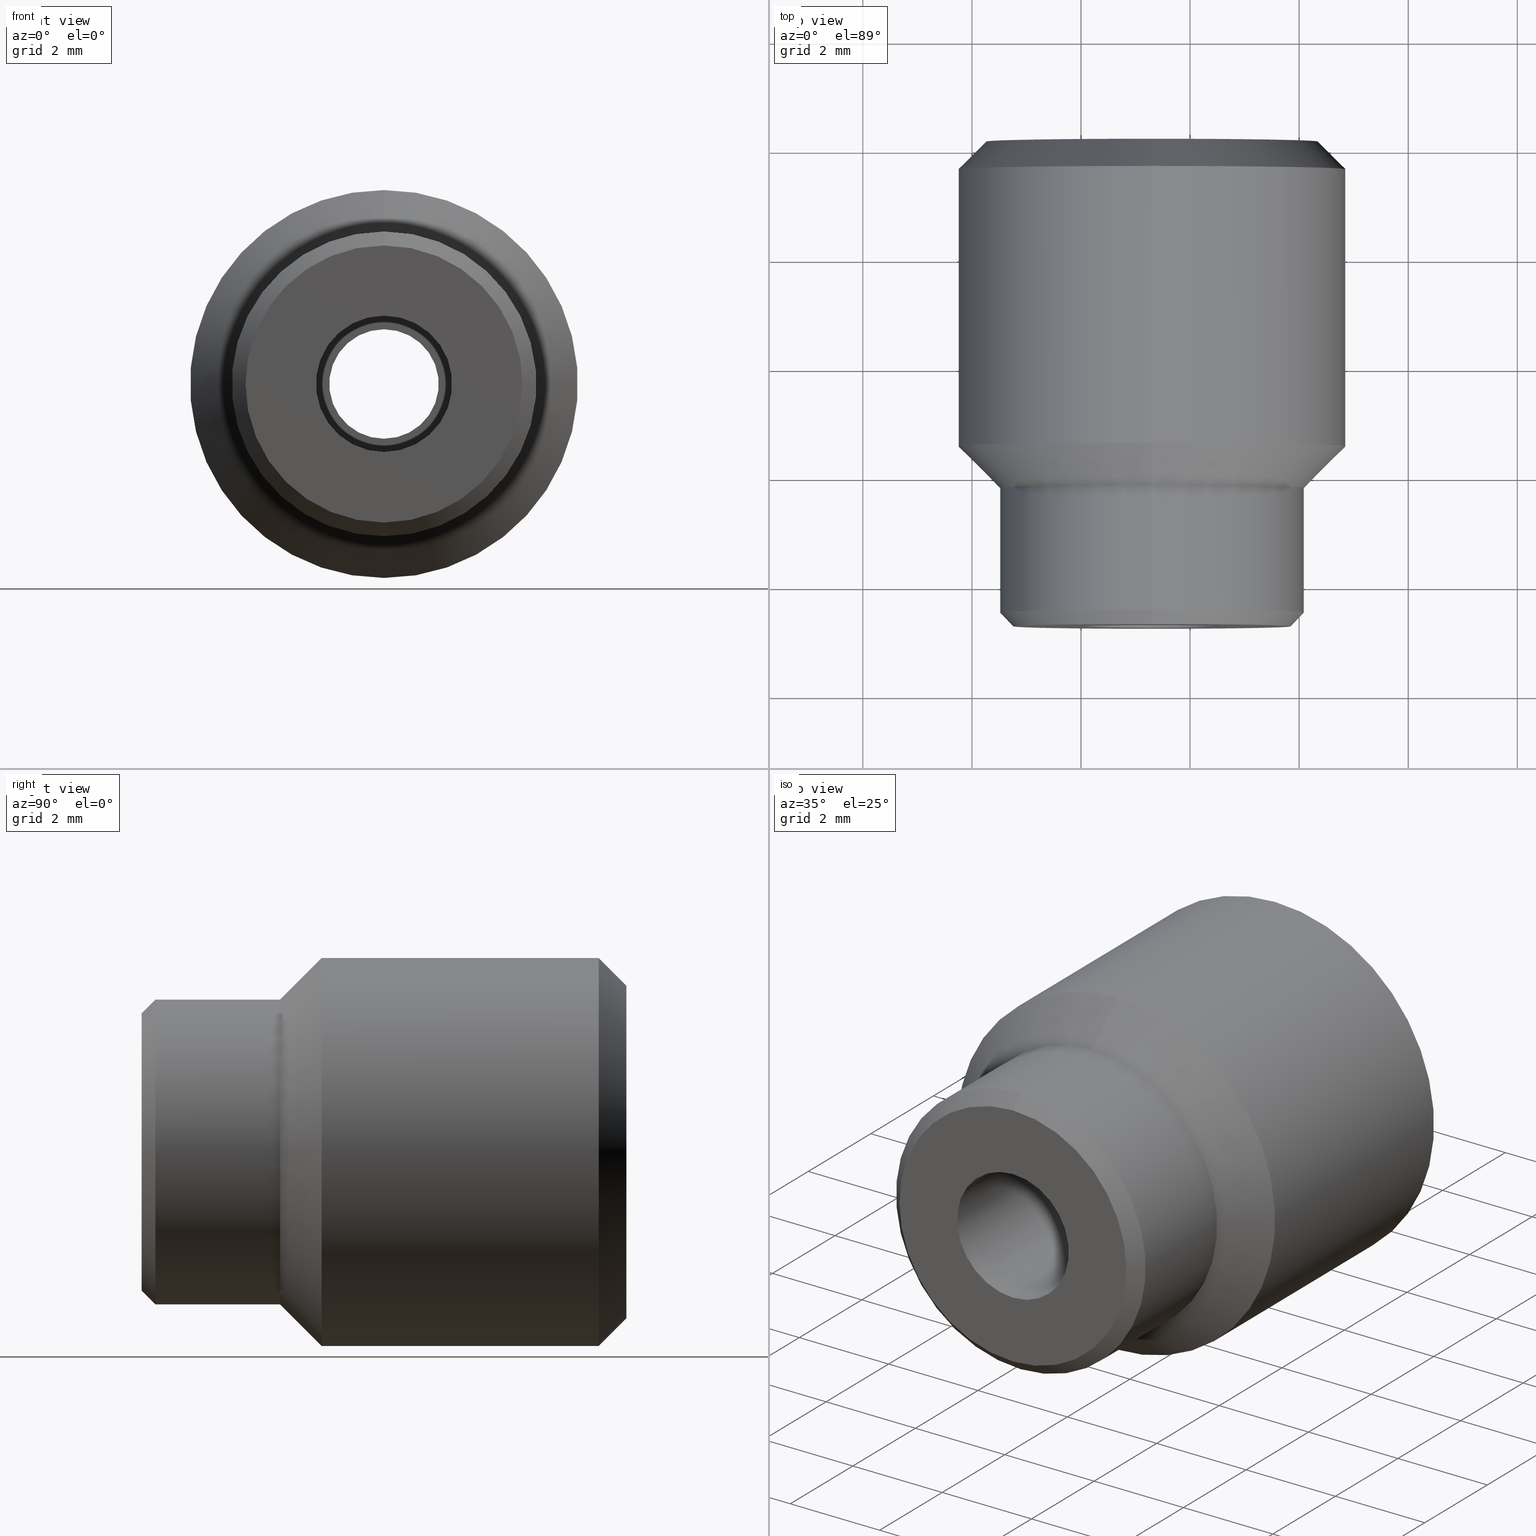
[diagram: canonical four-view strip — front | top / right | iso, engineering-drawing reading convention]
A machine part, canonical four-view strip (front | top / right | iso — engineering-drawing reading convention). The complete STEP part file that produces these views, byte-faithful:
ISO-10303-21;
HEADER;
FILE_DESCRIPTION (( 'STEP AP214' ),
    '1' );
FILE_NAME ('7658-E0W.STEP',
    '2011-08-18T18:49:43',
    ( 'Admin' ),
    ( 'Thorlabs, Inc.' ),
    'SwSTEP 2.0',
    'SolidWorks 2011',
    '' );
FILE_SCHEMA (( 'AUTOMOTIVE_DESIGN' ));
ENDSEC;

DATA;
#1 = SURFACE_SIDE_STYLE ('',( #803 ) ) ;
#2 = CARTESIAN_POINT ( 'NONE',  ( -0.8936271735354411900, 0.7798699709781208300, 0.2077039469346940700 ) ) ;
#3 = FILL_AREA_STYLE ('',( #15 ) ) ;
#4 = DIRECTION ( 'NONE',  ( -0.0000000000000000000, 1.000000000000000000, -0.0000000000000000000 ) ) ;
#5 = CARTESIAN_POINT ( 'NONE',  ( -0.8936271735354411900, 0.6358041395763715000, 0.1584913485094971700 ) ) ;
#6 = DIRECTION ( 'NONE',  ( -0.0000000000000000000, 1.000000000000000000, -0.0000000000000000000 ) ) ;
#7 = FILL_AREA_STYLE_COLOUR ( '', #541 ) ;
#8 =( LENGTH_UNIT ( ) NAMED_UNIT ( * ) SI_UNIT ( $, .METRE. ) );
#9 = DIRECTION ( 'NONE',  ( 0.0000000000000000000, 0.0000000000000000000, 1.000000000000000000 ) ) ;
#10 = FILL_AREA_STYLE_COLOUR ( '', #496 ) ;
#11 =( NAMED_UNIT ( * ) SI_UNIT ( $, .STERADIAN. ) SOLID_ANGLE_UNIT ( ) );
#12 =( LENGTH_UNIT ( ) NAMED_UNIT ( * ) SI_UNIT ( $, .METRE. ) );
#13 = DIRECTION ( 'NONE',  ( 8.659560562354948900E-017, 0.7071067811865462400, -0.7071067811865487900 ) ) ;
#14 = FILL_AREA_STYLE_COLOUR ( '', #497 ) ;
#15 = FILL_AREA_STYLE_COLOUR ( '', #514 ) ;
#16 = FILL_AREA_STYLE ('',( #125 ) ) ;
#17 = FILL_AREA_STYLE ('',( #14 ) ) ;
#18 = DIRECTION ( 'NONE',  ( 0.0000000000000000000, -0.0000000000000000000, -1.000000000000000000 ) ) ;
#19 = CARTESIAN_POINT ( 'NONE',  ( -0.8936271735354411900, 0.3858041395763716100, 0.1584913485094971700 ) ) ;
#20 = SURFACE_SIDE_STYLE ('',( #818 ) ) ;
#21 =( CONVERSION_BASED_UNIT ( 'INCH', #381 ) LENGTH_UNIT ( ) NAMED_UNIT ( #836 ) );
#22 = CARTESIAN_POINT ( 'NONE',  ( -0.8936271735354411900, 0.6158041395763715900, 0.2984913485094972100 ) ) ;
#23 = FILL_AREA_STYLE_COLOUR ( '', #516 ) ;
#24 = DIRECTION ( 'NONE',  ( 0.0000000000000000000, 0.0000000000000000000, 1.000000000000000000 ) ) ;
#25 = CARTESIAN_POINT ( 'NONE',  ( -0.8936271735354411900, 0.3858041395763716100, 0.04849134850949714200 ) ) ;
#26 = DIRECTION ( 'NONE',  ( -0.0000000000000000000, 1.000000000000000000, -0.0000000000000000000 ) ) ;
#27 = FILL_AREA_STYLE_COLOUR ( '', #462 ) ;
#28 =( LENGTH_UNIT ( ) NAMED_UNIT ( * ) SI_UNIT ( $, .METRE. ) );
#29 = CARTESIAN_POINT ( 'NONE',  ( -0.8936271735354411900, 0.4358041395763716000, 0.1584913485094971700 ) ) ;
#30 = SURFACE_STYLE_USAGE ( .BOTH. , #39 ) ;
#31 =( NAMED_UNIT ( * ) SI_UNIT ( $, .STERADIAN. ) SOLID_ANGLE_UNIT ( ) );
#32 =( CONVERSION_BASED_UNIT ( 'INCH', #412 ) LENGTH_UNIT ( ) NAMED_UNIT ( #840 ) );
#33 = FILL_AREA_STYLE_COLOUR ( '', #546 ) ;
#34 =( CONVERSION_BASED_UNIT ( 'INCH', #610 ) LENGTH_UNIT ( ) NAMED_UNIT ( #617 ) );
#35 =( LENGTH_UNIT ( ) NAMED_UNIT ( * ) SI_UNIT ( $, .METRE. ) );
#36 = CARTESIAN_POINT ( 'NONE',  ( -0.8936271735354411900, 0.4358041395763714900, 0.1584913485094971700 ) ) ;
#37 = CARTESIAN_POINT ( 'NONE',  ( -0.8936271735354411900, 0.2858041395763716300, 0.1584913485094971700 ) ) ;
#38 = DIRECTION ( 'NONE',  ( -0.0000000000000000000, 1.000000000000000000, -0.0000000000000000000 ) ) ;
#39 = SURFACE_SIDE_STYLE ('',( #702 ) ) ;
#40 = DIRECTION ( 'NONE',  ( 0.0000000000000000000, 0.0000000000000000000, 1.000000000000000000 ) ) ;
#41 = SURFACE_SIDE_STYLE ('',( #882 ) ) ;
#42 =( NAMED_UNIT ( * ) PLANE_ANGLE_UNIT ( ) SI_UNIT ( $, .RADIAN. ) );
#43 =( LENGTH_UNIT ( ) NAMED_UNIT ( * ) SI_UNIT ( $, .METRE. ) );
#44 = DIRECTION ( 'NONE',  ( 0.0000000000000000000, -1.000000000000000000, 0.0000000000000000000 ) ) ;
#45 = CARTESIAN_POINT ( 'NONE',  ( -0.8936271735354411900, 0.6158041395763715900, 0.2984913485094972100 ) ) ;
#46 = CARTESIAN_POINT ( 'NONE',  ( -0.8936271735354411900, 0.2858041395763716300, 0.2584913485094972300 ) ) ;
#47 = FILL_AREA_STYLE_COLOUR ( '', #491 ) ;
#48 = DIRECTION ( 'NONE',  ( 0.0000000000000000000, 0.0000000000000000000, 1.000000000000000000 ) ) ;
#49 = CARTESIAN_POINT ( 'NONE',  ( -0.8936271735354411900, 0.7798699709781208300, 0.1584913485094971700 ) ) ;
#50 = DIRECTION ( 'NONE',  ( 0.0000000000000000000, 0.7071067811865462400, 0.7071067811865487900 ) ) ;
#51 = DIRECTION ( 'NONE',  ( 0.0000000000000000000, 0.0000000000000000000, 1.000000000000000000 ) ) ;
#52 = FILL_AREA_STYLE ('',( #151 ) ) ;
#53 =( NAMED_UNIT ( * ) PLANE_ANGLE_UNIT ( ) SI_UNIT ( $, .RADIAN. ) );
#54 = DIRECTION ( 'NONE',  ( -0.0000000000000000000, 1.000000000000000000, -0.0000000000000000000 ) ) ;
#55 =( NAMED_UNIT ( * ) SI_UNIT ( $, .STERADIAN. ) SOLID_ANGLE_UNIT ( ) );
#56 = DIRECTION ( 'NONE',  ( -0.0000000000000000000, 1.000000000000000000, -0.0000000000000000000 ) ) ;
#57 = PLANE ( 'NONE',  #587 ) ;
#58 = DIRECTION ( 'NONE',  ( -0.0000000000000000000, 1.000000000000000000, -0.0000000000000000000 ) ) ;
#59 = CARTESIAN_POINT ( 'NONE',  ( -0.8936271735354411900, 0.6358041395763715000, 0.09899134850949717300 ) ) ;
#60 =( NAMED_UNIT ( * ) SI_UNIT ( $, .STERADIAN. ) SOLID_ANGLE_UNIT ( ) );
#61 = SURFACE_STYLE_USAGE ( .BOTH. , #260 ) ;
#62 = SURFACE_STYLE_USAGE ( .BOTH. , #318 ) ;
#63 =( NAMED_UNIT ( * ) PLANE_ANGLE_UNIT ( ) SI_UNIT ( $, .RADIAN. ) );
#64 =( CONVERSION_BASED_UNIT ( 'INCH', #567 ) LENGTH_UNIT ( ) NAMED_UNIT ( #825 ) );
#65 = FILL_AREA_STYLE ('',( #23 ) ) ;
#66 = CARTESIAN_POINT ( 'NONE',  ( -0.8936271735354411900, 0.3858041395763716100, 0.1584913485094971700 ) ) ;
#67 = CARTESIAN_POINT ( 'NONE',  ( -0.8936271735354411900, 0.6358041395763715000, 0.1584913485094971700 ) ) ;
#68 = DIRECTION ( 'NONE',  ( -0.0000000000000000000, 1.000000000000000000, -0.0000000000000000000 ) ) ;
#69 = FILL_AREA_STYLE_COLOUR ( '', #533 ) ;
#70 = CARTESIAN_POINT ( 'NONE',  ( -0.8936271735354411900, 0.3858041395763716100, 0.2684913485094972400 ) ) ;
#71 =( LENGTH_UNIT ( ) NAMED_UNIT ( * ) SI_UNIT ( $, .METRE. ) );
#72 = SURFACE_SIDE_STYLE ('',( #864 ) ) ;
#73 = SURFACE_STYLE_USAGE ( .BOTH. , #207 ) ;
#74 =( CONVERSION_BASED_UNIT ( 'INCH', #390 ) LENGTH_UNIT ( ) NAMED_UNIT ( #834 ) );
#75 =( LENGTH_UNIT ( ) NAMED_UNIT ( * ) SI_UNIT ( $, .METRE. ) );
#76 =( NAMED_UNIT ( * ) PLANE_ANGLE_UNIT ( ) SI_UNIT ( $, .RADIAN. ) );
#77 =( CONVERSION_BASED_UNIT ( 'INCH', #564 ) LENGTH_UNIT ( ) NAMED_UNIT ( #824 ) );
#78 =( NAMED_UNIT ( * ) SI_UNIT ( $, .STERADIAN. ) SOLID_ANGLE_UNIT ( ) );
#79 =( CONVERSION_BASED_UNIT ( 'INCH', #571 ) LENGTH_UNIT ( ) NAMED_UNIT ( #830 ) );
#80 = FILL_AREA_STYLE_COLOUR ( '', #538 ) ;
#81 = CARTESIAN_POINT ( 'NONE',  ( -0.8936271735354411900, 0.4358041395763716000, 0.1979913485094972100 ) ) ;
#82 = CARTESIAN_POINT ( 'NONE',  ( -0.8936271735354411900, 0.4158041395763716300, 0.1584913485094971700 ) ) ;
#83 = DIRECTION ( 'NONE',  ( -0.0000000000000000000, 1.000000000000000000, -0.0000000000000000000 ) ) ;
#84 = DIRECTION ( 'NONE',  ( 0.0000000000000000000, 0.7071067811865476800, 0.7071067811865473500 ) ) ;
#85 = CARTESIAN_POINT ( 'NONE',  ( -0.8936271735354411900, 0.7798699709781208300, 0.1584913485094971700 ) ) ;
#86 = DIRECTION ( 'NONE',  ( -0.0000000000000000000, 1.000000000000000000, -0.0000000000000000000 ) ) ;
#87 = DIRECTION ( 'NONE',  ( -0.0000000000000000000, 1.000000000000000000, 0.0000000000000000000 ) ) ;
#88 = DIRECTION ( 'NONE',  ( -0.0000000000000000000, 1.000000000000000000, -0.0000000000000000000 ) ) ;
#89 = CARTESIAN_POINT ( 'NONE',  ( -0.8936271735354411900, 0.7798699709781208300, 0.1584913485094971700 ) ) ;
#90 =( NAMED_UNIT ( * ) PLANE_ANGLE_UNIT ( ) SI_UNIT ( $, .RADIAN. ) );
#91 = DIRECTION ( 'NONE',  ( 0.0000000000000000000, 0.0000000000000000000, 1.000000000000000000 ) ) ;
#92 =( NAMED_UNIT ( * ) PLANE_ANGLE_UNIT ( ) SI_UNIT ( $, .RADIAN. ) );
#93 = DIRECTION ( 'NONE',  ( 0.0000000000000000000, 0.0000000000000000000, 1.000000000000000000 ) ) ;
#94 = CARTESIAN_POINT ( 'NONE',  ( -0.8936271735354411900, 0.4358041395763714900, 0.2077039469346940700 ) ) ;
#95 = DIRECTION ( 'NONE',  ( 0.0000000000000000000, 0.0000000000000000000, 1.000000000000000000 ) ) ;
#96 = CARTESIAN_POINT ( 'NONE',  ( -0.8936271735354411900, 0.7798699709781208300, 0.1189913485094971600 ) ) ;
#97 = CARTESIAN_POINT ( 'NONE',  ( -0.8936271735354411900, 0.2858041395763716300, 0.1092787500843002800 ) ) ;
#98 = DIRECTION ( 'NONE',  ( -0.0000000000000000000, 1.000000000000000000, -0.0000000000000000000 ) ) ;
#99 =( NAMED_UNIT ( * ) SI_UNIT ( $, .STERADIAN. ) SOLID_ANGLE_UNIT ( ) );
#100 = DIRECTION ( 'NONE',  ( -0.0000000000000000000, 1.000000000000000000, -0.0000000000000000000 ) ) ;
#101 =( CONVERSION_BASED_UNIT ( 'INCH', #420 ) LENGTH_UNIT ( ) NAMED_UNIT ( #832 ) );
#102 =( LENGTH_UNIT ( ) NAMED_UNIT ( * ) SI_UNIT ( $, .METRE. ) );
#103 =( NAMED_UNIT ( * ) SI_UNIT ( $, .STERADIAN. ) SOLID_ANGLE_UNIT ( ) );
#104 = CARTESIAN_POINT ( 'NONE',  ( -0.8936271735354411900, 0.2858041395763716300, 0.1584913485094971700 ) ) ;
#105 = FILL_AREA_STYLE_COLOUR ( '', #535 ) ;
#106 = SURFACE_STYLE_USAGE ( .BOTH. , #146 ) ;
#107 = SURFACE_SIDE_STYLE ('',( #717 ) ) ;
#108 =( NAMED_UNIT ( * ) PLANE_ANGLE_UNIT ( ) SI_UNIT ( $, .RADIAN. ) );
#109 = CARTESIAN_POINT ( 'NONE',  ( -0.8936271735354411900, 0.6158041395763715900, 0.1584913485094971700 ) ) ;
#110 = CARTESIAN_POINT ( 'NONE',  ( -0.8936271735354411900, 0.2958041395763715800, 0.04849134850949712200 ) ) ;
#111 = DIRECTION ( 'NONE',  ( 0.0000000000000000000, 0.0000000000000000000, 1.000000000000000000 ) ) ;
#112 = DIRECTION ( 'NONE',  ( 0.0000000000000000000, 0.0000000000000000000, 1.000000000000000000 ) ) ;
#113 =( CONVERSION_BASED_UNIT ( 'INCH', #392 ) LENGTH_UNIT ( ) NAMED_UNIT ( #835 ) );
#114 = DIRECTION ( 'NONE',  ( -0.0000000000000000000, 1.000000000000000000, 0.0000000000000000000 ) ) ;
#115 =( LENGTH_UNIT ( ) NAMED_UNIT ( * ) SI_UNIT ( $, .METRE. ) );
#116 = SURFACE_STYLE_USAGE ( .BOTH. , #309 ) ;
#117 = CARTESIAN_POINT ( 'NONE',  ( -0.8936271735354411900, 0.2858041395763716300, 0.1584913485094971700 ) ) ;
#118 = SURFACE_STYLE_USAGE ( .BOTH. , #248 ) ;
#119 = DIRECTION ( 'NONE',  ( 0.0000000000000000000, 0.0000000000000000000, 1.000000000000000000 ) ) ;
#120 = CARTESIAN_POINT ( 'NONE',  ( -0.8936271735354411900, 0.6158041395763715900, 0.1584913485094971700 ) ) ;
#121 = CARTESIAN_POINT ( 'NONE',  ( -0.8444145751102442000, 0.4358041395763715400, 0.1584913485094971700 ) ) ;
#122 = CARTESIAN_POINT ( 'NONE',  ( -0.8936271735354411900, 0.6358041395763715000, 0.1584913485094971700 ) ) ;
#123 = DIRECTION ( 'NONE',  ( 0.0000000000000000000, 0.0000000000000000000, -1.000000000000000000 ) ) ;
#124 =( LENGTH_UNIT ( ) NAMED_UNIT ( * ) SI_UNIT ( $, .METRE. ) );
#125 = FILL_AREA_STYLE_COLOUR ( '', #494 ) ;
#126 = CARTESIAN_POINT ( 'NONE',  ( -0.8936271735354411900, 0.6358041395763715000, 0.1584913485094971700 ) ) ;
#127 = CARTESIAN_POINT ( 'NONE',  ( -0.8936271735354411900, 0.7798699709781208300, 0.04849134850949712200 ) ) ;
#128 = DIRECTION ( 'NONE',  ( 8.659560562354935300E-017, 0.7071067811865473500, -0.7071067811865476800 ) ) ;
#129 = DIRECTION ( 'NONE',  ( -0.0000000000000000000, 1.000000000000000000, -0.0000000000000000000 ) ) ;
#130 = FILL_AREA_STYLE ('',( #80 ) ) ;
#131 =( LENGTH_UNIT ( ) NAMED_UNIT ( * ) SI_UNIT ( $, .METRE. ) );
#132 =( NAMED_UNIT ( * ) PLANE_ANGLE_UNIT ( ) SI_UNIT ( $, .RADIAN. ) );
#133 = DIRECTION ( 'NONE',  ( 0.0000000000000000000, 0.0000000000000000000, 1.000000000000000000 ) ) ;
#134 = DIRECTION ( 'NONE',  ( 0.0000000000000000000, 0.0000000000000000000, 1.000000000000000000 ) ) ;
#135 = DIRECTION ( 'NONE',  ( 0.0000000000000000000, 0.0000000000000000000, 1.000000000000000000 ) ) ;
#136 = DIRECTION ( 'NONE',  ( 0.0000000000000000000, 0.0000000000000000000, 1.000000000000000000 ) ) ;
#137 = SURFACE_STYLE_USAGE ( .BOTH. , #41 ) ;
#138 =( LENGTH_UNIT ( ) NAMED_UNIT ( * ) SI_UNIT ( $, .METRE. ) );
#139 = SURFACE_SIDE_STYLE ('',( #885 ) ) ;
#140 = SURFACE_STYLE_USAGE ( .BOTH. , #320 ) ;
#141 = FILL_AREA_STYLE ('',( #328 ) ) ;
#142 =( NAMED_UNIT ( * ) PLANE_ANGLE_UNIT ( ) SI_UNIT ( $, .RADIAN. ) );
#143 = SURFACE_STYLE_USAGE ( .BOTH. , #298 ) ;
#144 = DIRECTION ( 'NONE',  ( 0.0000000000000000000, 0.0000000000000000000, 1.000000000000000000 ) ) ;
#145 = FILL_AREA_STYLE ('',( #27 ) ) ;
#146 = SURFACE_SIDE_STYLE ('',( #648 ) ) ;
#147 = DIRECTION ( 'NONE',  ( -0.0000000000000000000, 1.000000000000000000, -0.0000000000000000000 ) ) ;
#148 = FILL_AREA_STYLE ('',( #10 ) ) ;
#149 = DIRECTION ( 'NONE',  ( -0.0000000000000000000, 1.000000000000000000, -0.0000000000000000000 ) ) ;
#150 =( NAMED_UNIT ( * ) SI_UNIT ( $, .STERADIAN. ) SOLID_ANGLE_UNIT ( ) );
#151 = FILL_AREA_STYLE_COLOUR ( '', #525 ) ;
#152 = CARTESIAN_POINT ( 'NONE',  ( -0.8936271735354411900, 0.7798699709781208300, 0.1979913485094972100 ) ) ;
#153 =( NAMED_UNIT ( * ) PLANE_ANGLE_UNIT ( ) SI_UNIT ( $, .RADIAN. ) );
#154 = CARTESIAN_POINT ( 'NONE',  ( -0.8936271735354411900, 0.4158041395763716300, 0.2984913485094972100 ) ) ;
#155 =( NAMED_UNIT ( * ) PLANE_ANGLE_UNIT ( ) SI_UNIT ( $, .RADIAN. ) );
#156 = DIRECTION ( 'NONE',  ( -0.0000000000000000000, 1.000000000000000000, -0.0000000000000000000 ) ) ;
#157 = DIRECTION ( 'NONE',  ( 0.0000000000000000000, 0.0000000000000000000, 1.000000000000000000 ) ) ;
#158 =( NAMED_UNIT ( * ) SI_UNIT ( $, .STERADIAN. ) SOLID_ANGLE_UNIT ( ) );
#159 = SURFACE_SIDE_STYLE ('',( #815 ) ) ;
#160 = DIRECTION ( 'NONE',  ( 0.0000000000000000000, 0.0000000000000000000, 1.000000000000000000 ) ) ;
#161 = FILL_AREA_STYLE ('',( #325 ) ) ;
#162 = FILL_AREA_STYLE ('',( #7 ) ) ;
#163 = SURFACE_SIDE_STYLE ('',( #661 ) ) ;
#164 = SURFACE_STYLE_USAGE ( .BOTH. , #305 ) ;
#165 = DIRECTION ( 'NONE',  ( -0.0000000000000000000, 1.000000000000000000, -0.0000000000000000000 ) ) ;
#166 = DIRECTION ( 'NONE',  ( 0.0000000000000000000, 0.0000000000000000000, 1.000000000000000000 ) ) ;
#167 = SURFACE_STYLE_USAGE ( .BOTH. , #107 ) ;
#168 = SURFACE_STYLE_USAGE ( .BOTH. , #1 ) ;
#169 =( LENGTH_UNIT ( ) NAMED_UNIT ( * ) SI_UNIT ( $, .METRE. ) );
#170 = DIRECTION ( 'NONE',  ( 0.0000000000000000000, 0.0000000000000000000, 1.000000000000000000 ) ) ;
#171 = SURFACE_STYLE_USAGE ( .BOTH. , #334 ) ;
#172 =( NAMED_UNIT ( * ) PLANE_ANGLE_UNIT ( ) SI_UNIT ( $, .RADIAN. ) );
#173 = FILL_AREA_STYLE_COLOUR ( '', #450 ) ;
#174 = CARTESIAN_POINT ( 'NONE',  ( -0.8936271735354411900, 0.7798699709781208300, 0.1584913485094971700 ) ) ;
#175 =( NAMED_UNIT ( * ) SI_UNIT ( $, .STERADIAN. ) SOLID_ANGLE_UNIT ( ) );
#176 = CARTESIAN_POINT ( 'NONE',  ( -0.8936271735354411900, 0.7798699709781208300, 0.2684913485094972400 ) ) ;
#177 = DIRECTION ( 'NONE',  ( 0.0000000000000000000, 0.0000000000000000000, -1.000000000000000000 ) ) ;
#178 = DIRECTION ( 'NONE',  ( -0.0000000000000000000, 1.000000000000000000, -0.0000000000000000000 ) ) ;
#179 = CARTESIAN_POINT ( 'NONE',  ( -0.8936271735354411900, 0.2858041395763716300, 0.05849134850949711700 ) ) ;
#180 = CARTESIAN_POINT ( 'NONE',  ( -0.8936271735354411900, 0.4158041395763716300, 0.1584913485094971700 ) ) ;
#181 = DIRECTION ( 'NONE',  ( 0.0000000000000000000, 0.0000000000000000000, 1.000000000000000000 ) ) ;
#182 = CARTESIAN_POINT ( 'NONE',  ( -0.8936271735354411900, 0.2958041395763715800, 0.1584913485094971700 ) ) ;
#183 =( NAMED_UNIT ( * ) SI_UNIT ( $, .STERADIAN. ) SOLID_ANGLE_UNIT ( ) );
#184 = PLANE ( 'NONE',  #444 ) ;
#185 =( LENGTH_UNIT ( ) NAMED_UNIT ( * ) SI_UNIT ( $, .METRE. ) );
#186 = FILL_AREA_STYLE ('',( #69 ) ) ;
#187 = DIRECTION ( 'NONE',  ( -0.0000000000000000000, 1.000000000000000000, -0.0000000000000000000 ) ) ;
#188 = DIRECTION ( 'NONE',  ( -0.0000000000000000000, 1.000000000000000000, -0.0000000000000000000 ) ) ;
#189 = DIRECTION ( 'NONE',  ( 0.0000000000000000000, -0.7071067811865475700, -0.7071067811865474600 ) ) ;
#190 = CARTESIAN_POINT ( 'NONE',  ( -0.8936271735354411900, 0.6158041395763715900, 0.1584913485094971700 ) ) ;
#191 =( NAMED_UNIT ( * ) PLANE_ANGLE_UNIT ( ) SI_UNIT ( $, .RADIAN. ) );
#192 = CARTESIAN_POINT ( 'NONE',  ( -0.8936271735354411900, 0.7798699709781208300, 0.1584913485094971700 ) ) ;
#193 =( CONVERSION_BASED_UNIT ( 'INCH', #411 ) LENGTH_UNIT ( ) NAMED_UNIT ( #837 ) );
#194 =( CONVERSION_BASED_UNIT ( 'INCH', #408 ) LENGTH_UNIT ( ) NAMED_UNIT ( #839 ) );
#195 = DIRECTION ( 'NONE',  ( -0.0000000000000000000, 1.000000000000000000, -0.0000000000000000000 ) ) ;
#196 = CARTESIAN_POINT ( 'NONE',  ( -0.8341271735354411900, 0.6358041395763715000, 0.1584913485094971700 ) ) ;
#197 = SURFACE_STYLE_USAGE ( .BOTH. , #20 ) ;
#198 = FILL_AREA_STYLE ('',( #105 ) ) ;
#199 =( CONVERSION_BASED_UNIT ( 'INCH', #597 ) LENGTH_UNIT ( ) NAMED_UNIT ( #828 ) );
#200 = DIRECTION ( 'NONE',  ( 0.0000000000000000000, 0.7071067811865473500, 0.7071067811865476800 ) ) ;
#201 = DIRECTION ( 'NONE',  ( -0.0000000000000000000, 1.000000000000000000, -0.0000000000000000000 ) ) ;
#202 = DIRECTION ( 'NONE',  ( 0.0000000000000000000, 0.0000000000000000000, 1.000000000000000000 ) ) ;
#203 = DIRECTION ( 'NONE',  ( 0.0000000000000000000, 0.0000000000000000000, 1.000000000000000000 ) ) ;
#204 = DIRECTION ( 'NONE',  ( -0.0000000000000000000, 1.000000000000000000, -0.0000000000000000000 ) ) ;
#205 =( NAMED_UNIT ( * ) PLANE_ANGLE_UNIT ( ) SI_UNIT ( $, .RADIAN. ) );
#206 = CARTESIAN_POINT ( 'NONE',  ( -0.8936271735354411900, 0.2858041395763716300, 0.1584913485094971700 ) ) ;
#207 = SURFACE_SIDE_STYLE ('',( #872 ) ) ;
#208 = FILL_AREA_STYLE_COLOUR ( '', #524 ) ;
#209 = FILL_AREA_STYLE_COLOUR ( '', #498 ) ;
#210 = DIRECTION ( 'NONE',  ( 8.659560562354930400E-017, 0.7071067811865476800, -0.7071067811865473500 ) ) ;
#211 =( NAMED_UNIT ( * ) SI_UNIT ( $, .STERADIAN. ) SOLID_ANGLE_UNIT ( ) );
#212 = DIRECTION ( 'NONE',  ( -0.0000000000000000000, 1.000000000000000000, -0.0000000000000000000 ) ) ;
#213 = DIRECTION ( 'NONE',  ( -0.0000000000000000000, 1.000000000000000000, -0.0000000000000000000 ) ) ;
#214 = DIRECTION ( 'NONE',  ( 0.0000000000000000000, 0.0000000000000000000, 1.000000000000000000 ) ) ;
#215 = CARTESIAN_POINT ( 'NONE',  ( -0.8936271735354411900, 0.4358041395763716000, 0.1189913485094971600 ) ) ;
#216 = DIRECTION ( 'NONE',  ( -0.0000000000000000000, 1.000000000000000000, -0.0000000000000000000 ) ) ;
#217 = CARTESIAN_POINT ( 'NONE',  ( -0.8936271735354411900, 0.4158041395763716300, 0.01849134850949713700 ) ) ;
#218 = CARTESIAN_POINT ( 'NONE',  ( -0.8936271735354411900, 0.2858041395763716300, 0.2077039469346940700 ) ) ;
#219 =( LENGTH_UNIT ( ) NAMED_UNIT ( * ) SI_UNIT ( $, .METRE. ) );
#220 = CARTESIAN_POINT ( 'NONE',  ( -0.8936271735354411900, 0.6358041395763715000, 0.1584913485094971700 ) ) ;
#221 = CARTESIAN_POINT ( 'NONE',  ( -0.8936271735354411900, 0.6158041395763715900, 0.1189913485094971600 ) ) ;
#222 = DIRECTION ( 'NONE',  ( 0.0000000000000000000, 0.0000000000000000000, 1.000000000000000000 ) ) ;
#223 = DIRECTION ( 'NONE',  ( 0.0000000000000000000, 0.0000000000000000000, 1.000000000000000000 ) ) ;
#224 = FILL_AREA_STYLE ('',( #33 ) ) ;
#225 = SURFACE_STYLE_USAGE ( .BOTH. , #295 ) ;
#226 =( NAMED_UNIT ( * ) SI_UNIT ( $, .STERADIAN. ) SOLID_ANGLE_UNIT ( ) );
#227 = DIRECTION ( 'NONE',  ( -0.0000000000000000000, 1.000000000000000000, -0.0000000000000000000 ) ) ;
#228 =( CONVERSION_BASED_UNIT ( 'INCH', #400 ) LENGTH_UNIT ( ) NAMED_UNIT ( #826 ) );
#229 = DIRECTION ( 'NONE',  ( 8.659560562354931600E-017, -0.7071067811865475700, 0.7071067811865474600 ) ) ;
#230 = CARTESIAN_POINT ( 'NONE',  ( -0.8936271735354411900, 0.2958041395763715800, 0.1584913485094971700 ) ) ;
#231 = SURFACE_STYLE_USAGE ( .BOTH. , #159 ) ;
#232 = FILL_AREA_STYLE ('',( #173 ) ) ;
#233 = FILL_AREA_STYLE ('',( #208 ) ) ;
#234 = DIRECTION ( 'NONE',  ( -0.0000000000000000000, 1.000000000000000000, -0.0000000000000000000 ) ) ;
#235 = CARTESIAN_POINT ( 'NONE',  ( -0.8936271735354411900, 0.4358041395763716000, 0.1584913485094971700 ) ) ;
#236 = CARTESIAN_POINT ( 'NONE',  ( -0.8936271735354411900, 0.6158041395763715900, 0.1584913485094971700 ) ) ;
#237 =( CONVERSION_BASED_UNIT ( 'INCH', #607 ) LENGTH_UNIT ( ) NAMED_UNIT ( #829 ) );
#238 = DIRECTION ( 'NONE',  ( 0.0000000000000000000, 0.0000000000000000000, 1.000000000000000000 ) ) ;
#239 = DIRECTION ( 'NONE',  ( 0.0000000000000000000, 0.0000000000000000000, 1.000000000000000000 ) ) ;
#240 = DIRECTION ( 'NONE',  ( -0.0000000000000000000, 1.000000000000000000, -0.0000000000000000000 ) ) ;
#241 =( NAMED_UNIT ( * ) PLANE_ANGLE_UNIT ( ) SI_UNIT ( $, .RADIAN. ) );
#242 = CARTESIAN_POINT ( 'NONE',  ( -0.8936271735354411900, 0.4358041395763714900, 0.1092787500843002800 ) ) ;
#243 = DIRECTION ( 'NONE',  ( -0.0000000000000000000, 1.000000000000000000, -0.0000000000000000000 ) ) ;
#244 = DIRECTION ( 'NONE',  ( -0.0000000000000000000, 1.000000000000000000, -0.0000000000000000000 ) ) ;
#245 =( LENGTH_UNIT ( ) NAMED_UNIT ( * ) SI_UNIT ( $, .METRE. ) );
#246 = DIRECTION ( 'NONE',  ( 0.0000000000000000000, 0.0000000000000000000, 1.000000000000000000 ) ) ;
#247 =( NAMED_UNIT ( * ) SI_UNIT ( $, .STERADIAN. ) SOLID_ANGLE_UNIT ( ) );
#248 = SURFACE_SIDE_STYLE ('',( #874 ) ) ;
#249 =( NAMED_UNIT ( * ) PLANE_ANGLE_UNIT ( ) SI_UNIT ( $, .RADIAN. ) );
#250 =( LENGTH_UNIT ( ) NAMED_UNIT ( * ) SI_UNIT ( $, .METRE. ) );
#251 =( NAMED_UNIT ( * ) PLANE_ANGLE_UNIT ( ) SI_UNIT ( $, .RADIAN. ) );
#252 = CARTESIAN_POINT ( 'NONE',  ( -0.8936271735354411900, 0.7798699709781208300, 0.01849134850949713700 ) ) ;
#253 = DIRECTION ( 'NONE',  ( -0.0000000000000000000, 1.000000000000000000, -0.0000000000000000000 ) ) ;
#254 = FILL_AREA_STYLE ('',( #209 ) ) ;
#255 = DIRECTION ( 'NONE',  ( 0.0000000000000000000, 0.0000000000000000000, 1.000000000000000000 ) ) ;
#256 =( CONVERSION_BASED_UNIT ( 'INCH', #583 ) LENGTH_UNIT ( ) NAMED_UNIT ( #823 ) );
#257 =( LENGTH_UNIT ( ) NAMED_UNIT ( * ) SI_UNIT ( $, .METRE. ) );
#258 =( NAMED_UNIT ( * ) SI_UNIT ( $, .STERADIAN. ) SOLID_ANGLE_UNIT ( ) );
#259 =( NAMED_UNIT ( * ) SI_UNIT ( $, .STERADIAN. ) SOLID_ANGLE_UNIT ( ) );
#260 = SURFACE_SIDE_STYLE ('',( #714 ) ) ;
#261 = CARTESIAN_POINT ( 'NONE',  ( -0.7936271735354411000, 0.2858041395763716300, 0.1584913485094971700 ) ) ;
#262 = DIRECTION ( 'NONE',  ( -0.0000000000000000000, 1.000000000000000000, -0.0000000000000000000 ) ) ;
#263 = CARTESIAN_POINT ( 'NONE',  ( -0.8936271735354411900, 0.6158041395763715900, 0.1979913485094972100 ) ) ;
#264 =( LENGTH_UNIT ( ) NAMED_UNIT ( * ) SI_UNIT ( $, .METRE. ) );
#265 =( CONVERSION_BASED_UNIT ( 'INCH', #433 ) LENGTH_UNIT ( ) NAMED_UNIT ( #831 ) );
#266 =( CONVERSION_BASED_UNIT ( 'INCH', #559 ) LENGTH_UNIT ( ) NAMED_UNIT ( #827 ) );
#267 = CARTESIAN_POINT ( 'NONE',  ( -0.8936271735354411900, 0.4358041395763714900, 0.1584913485094971700 ) ) ;
#268 = CARTESIAN_POINT ( 'NONE',  ( -0.8936271735354411900, 0.3858041395763716100, 0.2684913485094972400 ) ) ;
#269 = DIRECTION ( 'NONE',  ( -0.0000000000000000000, 1.000000000000000000, -0.0000000000000000000 ) ) ;
#270 = CARTESIAN_POINT ( 'NONE',  ( -0.8936271735354411900, 0.6358041395763715000, 0.2179913485094972000 ) ) ;
#271 =( NAMED_UNIT ( * ) SI_UNIT ( $, .STERADIAN. ) SOLID_ANGLE_UNIT ( ) );
#272 = FILL_AREA_STYLE ('',( #281 ) ) ;
#273 = DIRECTION ( 'NONE',  ( 0.0000000000000000000, -1.000000000000000000, 0.0000000000000000000 ) ) ;
#274 = DIRECTION ( 'NONE',  ( -0.0000000000000000000, 1.000000000000000000, -0.0000000000000000000 ) ) ;
#275 = DIRECTION ( 'NONE',  ( 0.0000000000000000000, 0.0000000000000000000, 1.000000000000000000 ) ) ;
#276 =( NAMED_UNIT ( * ) PLANE_ANGLE_UNIT ( ) SI_UNIT ( $, .RADIAN. ) );
#277 =( NAMED_UNIT ( * ) SI_UNIT ( $, .STERADIAN. ) SOLID_ANGLE_UNIT ( ) );
#278 = CARTESIAN_POINT ( 'NONE',  ( -0.8936271735354411900, 0.2858041395763716300, 0.1584913485094971700 ) ) ;
#279 = PLANE ( 'NONE',  #410 ) ;
#280 = CARTESIAN_POINT ( 'NONE',  ( -0.8936271735354411900, 0.7798699709781208300, 0.2984913485094972100 ) ) ;
#281 = FILL_AREA_STYLE_COLOUR ( '', #531 ) ;
#282 = CARTESIAN_POINT ( 'NONE',  ( -0.8936271735354411900, 0.6158041395763715900, 0.1584913485094971700 ) ) ;
#283 = DIRECTION ( 'NONE',  ( 0.0000000000000000000, 0.0000000000000000000, 1.000000000000000000 ) ) ;
#284 = DIRECTION ( 'NONE',  ( 0.0000000000000000000, 0.0000000000000000000, 1.000000000000000000 ) ) ;
#285 = DIRECTION ( 'NONE',  ( -0.0000000000000000000, 1.000000000000000000, -0.0000000000000000000 ) ) ;
#286 = FILL_AREA_STYLE ('',( #313 ) ) ;
#287 = DIRECTION ( 'NONE',  ( -0.0000000000000000000, 1.000000000000000000, -0.0000000000000000000 ) ) ;
#288 = CARTESIAN_POINT ( 'NONE',  ( -0.8936271735354411900, 0.3858041395763716100, 0.1584913485094971700 ) ) ;
#289 = SURFACE_STYLE_USAGE ( .BOTH. , #163 ) ;
#290 = DIRECTION ( 'NONE',  ( 0.0000000000000000000, -1.000000000000000000, 0.0000000000000000000 ) ) ;
#291 =( CONVERSION_BASED_UNIT ( 'INCH', #374 ) LENGTH_UNIT ( ) NAMED_UNIT ( #838 ) );
#292 = CARTESIAN_POINT ( 'NONE',  ( -0.8936271735354411900, 0.2858041395763716300, 0.1584913485094971700 ) ) ;
#293 = DIRECTION ( 'NONE',  ( -0.0000000000000000000, 1.000000000000000000, -0.0000000000000000000 ) ) ;
#294 = CARTESIAN_POINT ( 'NONE',  ( -0.8936271735354411900, 0.6158041395763715900, 0.1584913485094971700 ) ) ;
#295 = SURFACE_SIDE_STYLE ('',( #750 ) ) ;
#296 = SURFACE_STYLE_USAGE ( .BOTH. , #139 ) ;
#297 = DIRECTION ( 'NONE',  ( -0.0000000000000000000, 1.000000000000000000, -0.0000000000000000000 ) ) ;
#298 = SURFACE_SIDE_STYLE ('',( #695 ) ) ;
#299 = DIRECTION ( 'NONE',  ( 0.0000000000000000000, 0.0000000000000000000, 1.000000000000000000 ) ) ;
#300 = DIRECTION ( 'NONE',  ( 0.0000000000000000000, 0.0000000000000000000, 1.000000000000000000 ) ) ;
#301 = DIRECTION ( 'NONE',  ( 0.0000000000000000000, 0.0000000000000000000, 1.000000000000000000 ) ) ;
#302 = CARTESIAN_POINT ( 'NONE',  ( -0.8936271735354411900, 0.6158041395763715900, 0.01849134850949713700 ) ) ;
#303 = SURFACE_STYLE_USAGE ( .BOTH. , #72 ) ;
#304 = CARTESIAN_POINT ( 'NONE',  ( -0.8936271735354411900, 0.7798699709781208300, 0.1584913485094971700 ) ) ;
#305 = SURFACE_SIDE_STYLE ('',( #888 ) ) ;
#306 = CARTESIAN_POINT ( 'NONE',  ( -0.8936271735354411900, 0.6358041395763715000, 0.2179913485094972000 ) ) ;
#307 = CARTESIAN_POINT ( 'NONE',  ( -0.8936271735354411900, 0.7798699709781208300, 0.1584913485094971700 ) ) ;
#308 = CARTESIAN_POINT ( 'NONE',  ( -0.8936271735354411900, 0.6358041395763715000, 0.1584913485094971700 ) ) ;
#309 = SURFACE_SIDE_STYLE ('',( #867 ) ) ;
#310 = CARTESIAN_POINT ( 'NONE',  ( -0.8936271735354411900, 0.7798699709781208300, 0.1092787500843002800 ) ) ;
#311 = CARTESIAN_POINT ( 'NONE',  ( -0.8936271735354411900, 0.6358041395763715000, 0.03849134850949712700 ) ) ;
#312 = CARTESIAN_POINT ( 'NONE',  ( -0.8936271735354411900, 0.7798699709781208300, 0.1584913485094971700 ) ) ;
#313 = FILL_AREA_STYLE_COLOUR ( '', #510 ) ;
#314 = FILL_AREA_STYLE ('',( #47 ) ) ;
#315 =( NAMED_UNIT ( * ) SI_UNIT ( $, .STERADIAN. ) SOLID_ANGLE_UNIT ( ) );
#316 =( CONVERSION_BASED_UNIT ( 'INCH', #403 ) LENGTH_UNIT ( ) NAMED_UNIT ( #833 ) );
#317 = DIRECTION ( 'NONE',  ( 0.0000000000000000000, 0.0000000000000000000, 1.000000000000000000 ) ) ;
#318 = SURFACE_SIDE_STYLE ('',( #680 ) ) ;
#319 = DIRECTION ( 'NONE',  ( -0.0000000000000000000, 1.000000000000000000, -0.0000000000000000000 ) ) ;
#320 = SURFACE_SIDE_STYLE ('',( #728 ) ) ;
#321 = DIRECTION ( 'NONE',  ( 0.0000000000000000000, 0.0000000000000000000, 1.000000000000000000 ) ) ;
#322 = CARTESIAN_POINT ( 'NONE',  ( -0.8936271735354411900, 0.3858041395763716100, 0.1584913485094971700 ) ) ;
#323 = DIRECTION ( 'NONE',  ( -0.0000000000000000000, 1.000000000000000000, -0.0000000000000000000 ) ) ;
#324 = DIRECTION ( 'NONE',  ( -0.0000000000000000000, 1.000000000000000000, -0.0000000000000000000 ) ) ;
#325 = FILL_AREA_STYLE_COLOUR ( '', #457 ) ;
#326 =( NAMED_UNIT ( * ) PLANE_ANGLE_UNIT ( ) SI_UNIT ( $, .RADIAN. ) );
#327 = CARTESIAN_POINT ( 'NONE',  ( -0.8936271735354411900, 0.6158041395763715900, 0.01849134850949713700 ) ) ;
#328 = FILL_AREA_STYLE_COLOUR ( '', #490 ) ;
#329 =( CONVERSION_BASED_UNIT ( 'INCH', #424 ) LENGTH_UNIT ( ) NAMED_UNIT ( #822 ) );
#330 = DIRECTION ( 'NONE',  ( -0.0000000000000000000, 1.000000000000000000, -0.0000000000000000000 ) ) ;
#331 =( NAMED_UNIT ( * ) SI_UNIT ( $, .STERADIAN. ) SOLID_ANGLE_UNIT ( ) );
#332 =( LENGTH_UNIT ( ) NAMED_UNIT ( * ) SI_UNIT ( $, .METRE. ) );
#333 =( NAMED_UNIT ( * ) PLANE_ANGLE_UNIT ( ) SI_UNIT ( $, .RADIAN. ) );
#334 = SURFACE_SIDE_STYLE ('',( #878 ) ) ;
#335 = MANIFOLD_SOLID_BREP ( '7658-001-1-solid1', #672 ) ;
#336 = ADVANCED_BREP_SHAPE_REPRESENTATION ( '7658-E0W', ( #335, #574 ), #503 ) ;
#337 = VECTOR ( 'NONE', #13, 39.37007874015748100 ) ;
#338 = CIRCLE ( 'NONE', #346, 0.1100000000000000600 ) ;
#339 = PRESENTATION_LAYER_ASSIGNMENT (  '', '', ( #435 ) ) ;
#340 = MECHANICAL_DESIGN_GEOMETRIC_PRESENTATION_REPRESENTATION (  '', ( #430 ), #506 ) ;
#341 = AXIS2_PLACEMENT_3D ( 'NONE', #36, #165, #283 ) ;
#342 = VECTOR ( 'NONE', #178, 39.37007874015748100 ) ;
#343 = CIRCLE ( 'NONE', #345, 0.1000000000000000600 ) ;
#344 = VECTOR ( 'NONE', #210, 39.37007874015748100 ) ;
#345 = AXIS2_PLACEMENT_3D ( 'NONE', #206, #253, #157 ) ;
#346 = AXIS2_PLACEMENT_3D ( 'NONE', #230, #323, #144 ) ;
#347 = CIRCLE ( 'NONE', #349, 0.1400000000000000400 ) ;
#348 = VECTOR ( 'NONE', #4, 39.37007874015748100 ) ;
#349 = AXIS2_PLACEMENT_3D ( 'NONE', #180, #147, #284 ) ;
#350 = STYLED_ITEM ( 'NONE', ( #669 ), #492 ) ;
#351 = VECTOR ( 'NONE', #213, 39.37007874015748100 ) ;
#352 = VECTOR ( 'NONE', #229, 39.37007874015748100 ) ;
#353 = CIRCLE ( 'NONE', #355, 0.1200000000000000500 ) ;
#354 = VECTOR ( 'NONE', #50, 39.37007874015748100 ) ;
#355 = AXIS2_PLACEMENT_3D ( 'NONE', #67, #54, #238 ) ;
#356 = CIRCLE ( 'NONE', #401, 0.1000000000000000600 ) ;
#357 = CIRCLE ( 'NONE', #359, 0.03950000000000001400 ) ;
#358 = VECTOR ( 'NONE', #84, 39.37007874015748100 ) ;
#359 = AXIS2_PLACEMENT_3D ( 'NONE', #109, #68, #299 ) ;
#360 = AXIS2_PLACEMENT_3D ( 'NONE', #308, #243, #93 ) ;
#361 = VECTOR ( 'NONE', #324, 39.37007874015748100 ) ;
#362 = CIRCLE ( 'NONE', #364, 0.05950000000000000400 ) ;
#363 = VECTOR ( 'NONE', #240, 39.37007874015748100 ) ;
#364 = AXIS2_PLACEMENT_3D ( 'NONE', #5, #285, #202 ) ;
#365 = CIRCLE ( 'NONE', #366, 0.03950000000000001400 ) ;
#366 = AXIS2_PLACEMENT_3D ( 'NONE', #294, #234, #255 ) ;
#367 = VECTOR ( 'NONE', #200, 39.37007874015748100 ) ;
#368 = CIRCLE ( 'NONE', #370, 0.1100000000000000600 ) ;
#369 = VECTOR ( 'NONE', #128, 39.37007874015748100 ) ;
#370 = AXIS2_PLACEMENT_3D ( 'NONE', #288, #149, #170 ) ;
#371 = CONICAL_SURFACE ( 'NONE', #360, 0.05950000000000000400, 0.7853981633974485000 ) ;
#372 = PRESENTATION_LAYER_ASSIGNMENT (  '', '', ( #350 ) ) ;
#373 = MECHANICAL_DESIGN_GEOMETRIC_PRESENTATION_REPRESENTATION (  '', ( #350 ), #481 ) ;
#374 = LENGTH_MEASURE_WITH_UNIT ( LENGTH_MEASURE( 0.02539999999999999900 ), #102 );
#375 = CIRCLE ( 'NONE', #393, 0.05950000000000000400 ) ;
#376 = AXIS2_PLACEMENT_3D ( 'NONE', #220, #26, #91 ) ;
#377 = CONICAL_SURFACE ( 'NONE', #376, 0.05950000000000000400, 0.7853981633974485000 ) ;
#378 = STYLED_ITEM ( 'NONE', ( #698 ), #495 ) ;
#379 = PRESENTATION_LAYER_ASSIGNMENT (  '', '', ( #378 ) ) ;
#380 = MECHANICAL_DESIGN_GEOMETRIC_PRESENTATION_REPRESENTATION (  '', ( #378 ), #519 ) ;
#381 = LENGTH_MEASURE_WITH_UNIT ( LENGTH_MEASURE( 0.02539999999999999900 ), #12 );
#382 = STYLED_ITEM ( 'NONE', ( #685 ), #502 ) ;
#383 = PRESENTATION_LAYER_ASSIGNMENT (  '', '', ( #385 ) ) ;
#384 = MECHANICAL_DESIGN_GEOMETRIC_PRESENTATION_REPRESENTATION (  '', ( #414 ), #500 ) ;
#385 = STYLED_ITEM ( 'NONE', ( #866 ), #512 ) ;
#386 = PRESENTATION_LAYER_ASSIGNMENT (  '', '', ( #382 ) ) ;
#387 = PRESENTATION_LAYER_ASSIGNMENT (  '', '', ( #414 ) ) ;
#388 = PRESENTATION_LAYER_ASSIGNMENT (  '', '', ( #419 ) ) ;
#389 = AXIS2_PLACEMENT_3D ( 'NONE', #322, #6, #181 ) ;
#390 = LENGTH_MEASURE_WITH_UNIT ( LENGTH_MEASURE( 0.02539999999999999900 ), #28 );
#391 = CIRCLE ( 'NONE', #426, 0.03950000000000001400 ) ;
#392 = LENGTH_MEASURE_WITH_UNIT ( LENGTH_MEASURE( 0.02539999999999999900 ), #43 );
#393 = AXIS2_PLACEMENT_3D ( 'NONE', #122, #56, #203 ) ;
#394 = CIRCLE ( 'NONE', #341, 0.04921259842519689500 ) ;
#395 = PRESENTATION_LAYER_ASSIGNMENT (  '', '', ( #443 ) ) ;
#396 = CIRCLE ( 'NONE', #427, 0.1400000000000000400 ) ;
#397 = MECHANICAL_DESIGN_GEOMETRIC_PRESENTATION_REPRESENTATION (  '', ( #443 ), #460 ) ;
#398 = CIRCLE ( 'NONE', #439, 0.04921259842519689500 ) ;
#399 = AXIS2_PLACEMENT_3D ( 'NONE', #312, #216, #111 ) ;
#400 = LENGTH_MEASURE_WITH_UNIT ( LENGTH_MEASURE( 0.02539999999999999900 ), #332 );
#401 = AXIS2_PLACEMENT_3D ( 'NONE', #292, #98, #136 ) ;
#402 = AXIS2_PLACEMENT_3D ( 'NONE', #307, #156, #222 ) ;
#403 = LENGTH_MEASURE_WITH_UNIT ( LENGTH_MEASURE( 0.02539999999999999900 ), #35 );
#404 = MECHANICAL_DESIGN_GEOMETRIC_PRESENTATION_REPRESENTATION (  '', ( #442 ), #517 ) ;
#405 = AXIS2_PLACEMENT_3D ( 'NONE', #192, #244, #321 ) ;
#406 = PRESENTATION_LAYER_ASSIGNMENT (  '', '', ( #421 ) ) ;
#407 = MECHANICAL_DESIGN_GEOMETRIC_PRESENTATION_REPRESENTATION (  '', ( #429 ), #505 ) ;
#408 = LENGTH_MEASURE_WITH_UNIT ( LENGTH_MEASURE( 0.02539999999999999900 ), #219 );
#409 = CONICAL_SURFACE ( 'NONE', #389, 0.1100000000000000600, 0.7853981633974480600 ) ;
#410 = AXIS2_PLACEMENT_3D ( 'NONE', #261, #114, #160 ) ;
#411 = LENGTH_MEASURE_WITH_UNIT ( LENGTH_MEASURE( 0.02539999999999999900 ), #250 );
#412 = LENGTH_MEASURE_WITH_UNIT ( LENGTH_MEASURE( 0.02539999999999999900 ), #115 );
#413 = PRESENTATION_LAYER_ASSIGNMENT (  '', '', ( #422 ) ) ;
#414 = STYLED_ITEM ( 'NONE', ( #687 ), #335 ) ;
#415 = AXIS2_PLACEMENT_3D ( 'NONE', #49, #100, #223 ) ;
#416 = MECHANICAL_DESIGN_GEOMETRIC_PRESENTATION_REPRESENTATION (  '', ( #382 ), #489 ) ;
#417 = AXIS2_PLACEMENT_3D ( 'NONE', #120, #290, #123 ) ;
#418 = MECHANICAL_DESIGN_GEOMETRIC_PRESENTATION_REPRESENTATION (  '', ( #421 ), #507 ) ;
#419 = STYLED_ITEM ( 'NONE', ( #703 ), #464 ) ;
#420 = LENGTH_MEASURE_WITH_UNIT ( LENGTH_MEASURE( 0.02539999999999999900 ), #185 );
#421 = STYLED_ITEM ( 'NONE', ( #796 ), #455 ) ;
#422 = STYLED_ITEM ( 'NONE', ( #694 ), #454 ) ;
#423 = AXIS2_PLACEMENT_3D ( 'NONE', #89, #187, #112 ) ;
#424 = LENGTH_MEASURE_WITH_UNIT ( LENGTH_MEASURE( 0.02539999999999999900 ), #245 );
#425 = PRESENTATION_LAYER_ASSIGNMENT (  '', '', ( #429 ) ) ;
#426 = AXIS2_PLACEMENT_3D ( 'NONE', #235, #129, #48 ) ;
#427 = AXIS2_PLACEMENT_3D ( 'NONE', #190, #330, #133 ) ;
#428 = PRESENTATION_LAYER_ASSIGNMENT (  '', '', ( #445 ) ) ;
#429 = STYLED_ITEM ( 'NONE', ( #794 ), #504 ) ;
#430 = STYLED_ITEM ( 'NONE', ( #664 ), #452 ) ;
#431 = AXIS2_PLACEMENT_3D ( 'NONE', #282, #44, #177 ) ;
#432 = MECHANICAL_DESIGN_GEOMETRIC_PRESENTATION_REPRESENTATION (  '', ( #435 ), #520 ) ;
#433 = LENGTH_MEASURE_WITH_UNIT ( LENGTH_MEASURE( 0.02539999999999999900 ), #169 );
#434 = CONICAL_SURFACE ( 'NONE', #431, 0.1400000000000000400, 0.7853981633974482800 ) ;
#435 = STYLED_ITEM ( 'NONE', ( #692 ), #453 ) ;
#436 = MECHANICAL_DESIGN_GEOMETRIC_PRESENTATION_REPRESENTATION (  '', ( #419 ), #540 ) ;
#437 = PRESENTATION_LAYER_ASSIGNMENT (  '', '', ( #442 ) ) ;
#438 = PRESENTATION_LAYER_ASSIGNMENT (  '', '', ( #430 ) ) ;
#439 = AXIS2_PLACEMENT_3D ( 'NONE', #278, #38, #301 ) ;
#440 = MECHANICAL_DESIGN_GEOMETRIC_PRESENTATION_REPRESENTATION (  '', ( #422 ), #513 ) ;
#441 = CONICAL_SURFACE ( 'NONE', #417, 0.1400000000000000400, 0.7853981633974482800 ) ;
#442 = STYLED_ITEM ( 'NONE', ( #707 ), #456 ) ;
#443 = STYLED_ITEM ( 'NONE', ( #679 ), #451 ) ;
#444 = AXIS2_PLACEMENT_3D ( 'NONE', #121, #87, #166 ) ;
#445 = STYLED_ITEM ( 'NONE', ( #875 ), #508 ) ;
#446 = VECTOR ( 'NONE', #188, 39.37007874015748100 ) ;
#447 = VECTOR ( 'NONE', #83, 39.37007874015748100 ) ;
#448 = COLOUR_RGB ( '',0.7921568627450980000, 0.8196078431372548800, 0.9333333333333333500 ) ;
#449 =( GEOMETRIC_REPRESENTATION_CONTEXT ( 3 ) GLOBAL_UNCERTAINTY_ASSIGNED_CONTEXT ( ( #615 ) ) GLOBAL_UNIT_ASSIGNED_CONTEXT ( ( #621, #627, #626 ) ) REPRESENTATION_CONTEXT ( 'NONE', 'WORKASPACE' ) );
#450 = COLOUR_RGB ( '',0.7529411764705882200, 0.7529411764705882200, 0.7529411764705882200 ) ;
#451 = ADVANCED_FACE ( 'NONE', ( #772 ), #409, .T. ) ;
#452 = ADVANCED_FACE ( 'NONE', ( #814 ), #647, .F. ) ;
#453 = ADVANCED_FACE ( 'NONE', ( #700 ), #658, .F. ) ;
#454 = ADVANCED_FACE ( 'NONE', ( #696, #650 ), #279, .F. ) ;
#455 = ADVANCED_FACE ( 'NONE', ( #715 ), #697, .F. ) ;
#456 = ADVANCED_FACE ( 'NONE', ( #701 ), #441, .T. ) ;
#457 = COLOUR_RGB ( '',0.7529411764705882200, 0.7529411764705882200, 0.7529411764705882200 ) ;
#458 = EDGE_CURVE ( 'NONE', #744, #765, #708, .T. ) ;
#459 = EDGE_CURVE ( 'NONE', #760, #765, #396, .T. ) ;
#460 =( GEOMETRIC_REPRESENTATION_CONTEXT ( 3 ) GLOBAL_UNCERTAINTY_ASSIGNED_CONTEXT ( ( #856 ) ) GLOBAL_UNIT_ASSIGNED_CONTEXT ( ( #329, #76, #175 ) ) REPRESENTATION_CONTEXT ( 'NONE', 'WORKASPACE' ) );
#461 = EDGE_CURVE ( 'NONE', #678, #775, #718, .T. ) ;
#462 = COLOUR_RGB ( '',0.7921568627450980000, 0.8196078431372548800, 0.9333333333333333500 ) ;
#463 = EDGE_CURVE ( 'NONE', #678, #711, #391, .T. ) ;
#464 = ADVANCED_FACE ( 'NONE', ( #720, #719 ), #184, .F. ) ;
#465 = EDGE_CURVE ( 'NONE', #673, #722, #398, .T. ) ;
#466 = EDGE_CURVE ( 'NONE', #737, #736, #394, .T. ) ;
#467 = EDGE_CURVE ( 'NONE', #722, #736, #662, .T. ) ;
#468 = EDGE_CURVE ( 'NONE', #809, #674, #693, .T. ) ;
#469 = EDGE_CURVE ( 'NONE', #821, #744, #801, .T. ) ;
#470 = EDGE_CURVE ( 'NONE', #820, #809, #343, .T. ) ;
#471 = EDGE_CURVE ( 'NONE', #795, #674, #338, .T. ) ;
#472 = EDGE_CURVE ( 'NONE', #674, #821, #659, .T. ) ;
#473 = EDGE_CURVE ( 'NONE', #740, #744, #347, .T. ) ;
#474 = EDGE_CURVE ( 'NONE', #740, #760, #646, .T. ) ;
#475 = EDGE_CURVE ( 'NONE', #808, #760, #689, .T. ) ;
#476 = EDGE_CURVE ( 'NONE', #820, #795, #741, .T. ) ;
#477 = EDGE_CURVE ( 'NONE', #808, #713, #353, .T. ) ;
#478 = EDGE_CURVE ( 'NONE', #731, #740, #816, .T. ) ;
#479 = EDGE_CURVE ( 'NONE', #775, #651, #357, .T. ) ;
#480 = EDGE_CURVE ( 'NONE', #711, #651, #805, .T. ) ;
#481 =( GEOMETRIC_REPRESENTATION_CONTEXT ( 3 ) GLOBAL_UNCERTAINTY_ASSIGNED_CONTEXT ( ( #850 ) ) GLOBAL_UNIT_ASSIGNED_CONTEXT ( ( #291, #333, #11 ) ) REPRESENTATION_CONTEXT ( 'NONE', 'WORKASPACE' ) );
#482 = EDGE_CURVE ( 'NONE', #795, #731, #668, .T. ) ;
#483 = EDGE_CURVE ( 'NONE', #710, #790, #362, .T. ) ;
#484 = EDGE_CURVE ( 'NONE', #651, #775, #365, .T. ) ;
#485 = EDGE_CURVE ( 'NONE', #651, #710, #666, .T. ) ;
#486 =( GEOMETRIC_REPRESENTATION_CONTEXT ( 3 ) GLOBAL_UNCERTAINTY_ASSIGNED_CONTEXT ( ( #844 ) ) GLOBAL_UNIT_ASSIGNED_CONTEXT ( ( #79, #241, #150 ) ) REPRESENTATION_CONTEXT ( 'NONE', 'WORKASPACE' ) );
#487 = EDGE_CURVE ( 'NONE', #775, #790, #686, .T. ) ;
#488 = EDGE_CURVE ( 'NONE', #731, #821, #368, .T. ) ;
#489 =( GEOMETRIC_REPRESENTATION_CONTEXT ( 3 ) GLOBAL_UNCERTAINTY_ASSIGNED_CONTEXT ( ( #843 ) ) GLOBAL_UNIT_ASSIGNED_CONTEXT ( ( #113, #142, #31 ) ) REPRESENTATION_CONTEXT ( 'NONE', 'WORKASPACE' ) );
#490 = COLOUR_RGB ( '',0.7529411764705882200, 0.7529411764705882200, 0.7529411764705882200 ) ;
#491 = COLOUR_RGB ( '',0.7529411764705882200, 0.7529411764705882200, 0.7529411764705882200 ) ;
#492 = ADVANCED_FACE ( 'NONE', ( #773 ), #371, .F. ) ;
#493 =( GEOMETRIC_REPRESENTATION_CONTEXT ( 3 ) GLOBAL_UNCERTAINTY_ASSIGNED_CONTEXT ( ( #846 ) ) GLOBAL_UNIT_ASSIGNED_CONTEXT ( ( #199, #155, #211 ) ) REPRESENTATION_CONTEXT ( 'NONE', 'WORKASPACE' ) );
#494 = COLOUR_RGB ( '',0.7529411764705882200, 0.7529411764705882200, 0.7529411764705882200 ) ;
#495 = ADVANCED_FACE ( 'NONE', ( #660 ), #377, .F. ) ;
#496 = COLOUR_RGB ( '',1.000000000000000000, 1.000000000000000000, 1.000000000000000000 ) ;
#497 = COLOUR_RGB ( '',0.7529411764705882200, 0.7529411764705882200, 0.7529411764705882200 ) ;
#498 = COLOUR_RGB ( '',0.7529411764705882200, 0.7529411764705882200, 0.7529411764705882200 ) ;
#499 = EDGE_CURVE ( 'NONE', #790, #710, #375, .T. ) ;
#500 =( GEOMETRIC_REPRESENTATION_CONTEXT ( 3 ) GLOBAL_UNCERTAINTY_ASSIGNED_CONTEXT ( ( #854 ) ) GLOBAL_UNIT_ASSIGNED_CONTEXT ( ( #228, #42, #55 ) ) REPRESENTATION_CONTEXT ( 'NONE', 'WORKASPACE' ) );
#501 = EDGE_CURVE ( 'NONE', #809, #820, #356, .T. ) ;
#502 = ADVANCED_FACE ( 'NONE', ( #691 ), #749, .F. ) ;
#503 =( GEOMETRIC_REPRESENTATION_CONTEXT ( 3 ) GLOBAL_UNCERTAINTY_ASSIGNED_CONTEXT ( ( #614 ) ) GLOBAL_UNIT_ASSIGNED_CONTEXT ( ( #637, #644, #643 ) ) REPRESENTATION_CONTEXT ( 'NONE', 'WORKASPACE' ) );
#504 = ADVANCED_FACE ( 'NONE', ( #709 ), #862, .T. ) ;
#505 =( GEOMETRIC_REPRESENTATION_CONTEXT ( 3 ) GLOBAL_UNCERTAINTY_ASSIGNED_CONTEXT ( ( #847 ) ) GLOBAL_UNIT_ASSIGNED_CONTEXT ( ( #193, #108, #99 ) ) REPRESENTATION_CONTEXT ( 'NONE', 'WORKASPACE' ) );
#506 =( GEOMETRIC_REPRESENTATION_CONTEXT ( 3 ) GLOBAL_UNCERTAINTY_ASSIGNED_CONTEXT ( ( #855 ) ) GLOBAL_UNIT_ASSIGNED_CONTEXT ( ( #74, #172, #60 ) ) REPRESENTATION_CONTEXT ( 'NONE', 'WORKASPACE' ) );
#507 =( GEOMETRIC_REPRESENTATION_CONTEXT ( 3 ) GLOBAL_UNCERTAINTY_ASSIGNED_CONTEXT ( ( #852 ) ) GLOBAL_UNIT_ASSIGNED_CONTEXT ( ( #265, #276, #315 ) ) REPRESENTATION_CONTEXT ( 'NONE', 'WORKASPACE' ) );
#508 = ADVANCED_FACE ( 'NONE', ( #873 ), #434, .T. ) ;
#509 = ADVANCED_FACE ( 'NONE', ( #895 ), #871, .T. ) ;
#510 = COLOUR_RGB ( '',0.7529411764705882200, 0.7529411764705882200, 0.7529411764705882200 ) ;
#511 = EDGE_CURVE ( 'NONE', #713, #765, #870, .T. ) ;
#512 = ADVANCED_FACE ( 'NONE', ( #868 ), #869, .T. ) ;
#513 =( GEOMETRIC_REPRESENTATION_CONTEXT ( 3 ) GLOBAL_UNCERTAINTY_ASSIGNED_CONTEXT ( ( #857 ) ) GLOBAL_UNIT_ASSIGNED_CONTEXT ( ( #316, #326, #158 ) ) REPRESENTATION_CONTEXT ( 'NONE', 'WORKASPACE' ) );
#514 = COLOUR_RGB ( '',0.7529411764705882200, 0.7529411764705882200, 0.7529411764705882200 ) ;
#515 = ADVANCED_FACE ( 'NONE', ( #865 ), #553, .T. ) ;
#516 = COLOUR_RGB ( '',0.7529411764705882200, 0.7529411764705882200, 0.7529411764705882200 ) ;
#517 =( GEOMETRIC_REPRESENTATION_CONTEXT ( 3 ) GLOBAL_UNCERTAINTY_ASSIGNED_CONTEXT ( ( #859 ) ) GLOBAL_UNIT_ASSIGNED_CONTEXT ( ( #32, #191, #103 ) ) REPRESENTATION_CONTEXT ( 'NONE', 'WORKASPACE' ) );
#518 =( GEOMETRIC_REPRESENTATION_CONTEXT ( 3 ) GLOBAL_UNCERTAINTY_ASSIGNED_CONTEXT ( ( #848 ) ) GLOBAL_UNIT_ASSIGNED_CONTEXT ( ( #266, #153, #78 ) ) REPRESENTATION_CONTEXT ( 'NONE', 'WORKASPACE' ) );
#519 =( GEOMETRIC_REPRESENTATION_CONTEXT ( 3 ) GLOBAL_UNCERTAINTY_ASSIGNED_CONTEXT ( ( #845 ) ) GLOBAL_UNIT_ASSIGNED_CONTEXT ( ( #21, #132, #331 ) ) REPRESENTATION_CONTEXT ( 'NONE', 'WORKASPACE' ) );
#520 =( GEOMETRIC_REPRESENTATION_CONTEXT ( 3 ) GLOBAL_UNCERTAINTY_ASSIGNED_CONTEXT ( ( #858 ) ) GLOBAL_UNIT_ASSIGNED_CONTEXT ( ( #101, #205, #226 ) ) REPRESENTATION_CONTEXT ( 'NONE', 'WORKASPACE' ) );
#521 = EDGE_CURVE ( 'NONE', #821, #731, #577, .T. ) ;
#522 = ADVANCED_FACE ( 'NONE', ( #877 ), #876, .T. ) ;
#523 = ADVANCED_FACE ( 'NONE', ( #880, #881 ), #57, .F. ) ;
#524 = COLOUR_RGB ( '',0.7529411764705882200, 0.7529411764705882200, 0.7529411764705882200 ) ;
#525 = COLOUR_RGB ( '',0.7529411764705882200, 0.7529411764705882200, 0.7529411764705882200 ) ;
#526 = EDGE_CURVE ( 'NONE', #736, #737, #575, .T. ) ;
#527 =( GEOMETRIC_REPRESENTATION_CONTEXT ( 3 ) GLOBAL_UNCERTAINTY_ASSIGNED_CONTEXT ( ( #613 ) ) GLOBAL_UNIT_ASSIGNED_CONTEXT ( ( #34, #90, #271 ) ) REPRESENTATION_CONTEXT ( 'NONE', 'WORKASPACE' ) );
#528 = ADVANCED_FACE ( 'NONE', ( #884 ), #562, .T. ) ;
#529 = EDGE_CURVE ( 'NONE', #722, #673, #556, .T. ) ;
#530 =( GEOMETRIC_REPRESENTATION_CONTEXT ( 3 ) GLOBAL_UNCERTAINTY_ASSIGNED_CONTEXT ( ( #851 ) ) GLOBAL_UNIT_ASSIGNED_CONTEXT ( ( #256, #92, #277 ) ) REPRESENTATION_CONTEXT ( 'NONE', 'WORKASPACE' ) );
#531 = COLOUR_RGB ( '',0.7529411764705882200, 0.7529411764705882200, 0.7529411764705882200 ) ;
#532 =( GEOMETRIC_REPRESENTATION_CONTEXT ( 3 ) GLOBAL_UNCERTAINTY_ASSIGNED_CONTEXT ( ( #842 ) ) GLOBAL_UNIT_ASSIGNED_CONTEXT ( ( #237, #251, #259 ) ) REPRESENTATION_CONTEXT ( 'NONE', 'WORKASPACE' ) );
#533 = COLOUR_RGB ( '',0.7529411764705882200, 0.7529411764705882200, 0.7529411764705882200 ) ;
#534 =( GEOMETRIC_REPRESENTATION_CONTEXT ( 3 ) GLOBAL_UNCERTAINTY_ASSIGNED_CONTEXT ( ( #849 ) ) GLOBAL_UNIT_ASSIGNED_CONTEXT ( ( #64, #249, #258 ) ) REPRESENTATION_CONTEXT ( 'NONE', 'WORKASPACE' ) );
#535 = COLOUR_RGB ( '',0.7529411764705882200, 0.7529411764705882200, 0.7529411764705882200 ) ;
#536 =( GEOMETRIC_REPRESENTATION_CONTEXT ( 3 ) GLOBAL_UNCERTAINTY_ASSIGNED_CONTEXT ( ( #841 ) ) GLOBAL_UNIT_ASSIGNED_CONTEXT ( ( #77, #63, #247 ) ) REPRESENTATION_CONTEXT ( 'NONE', 'WORKASPACE' ) );
#537 = EDGE_CURVE ( 'NONE', #674, #795, #606, .T. ) ;
#538 = COLOUR_RGB ( '',1.000000000000000000, 1.000000000000000000, 1.000000000000000000 ) ;
#539 = EDGE_CURVE ( 'NONE', #744, #740, #592, .T. ) ;
#540 =( GEOMETRIC_REPRESENTATION_CONTEXT ( 3 ) GLOBAL_UNCERTAINTY_ASSIGNED_CONTEXT ( ( #853 ) ) GLOBAL_UNIT_ASSIGNED_CONTEXT ( ( #194, #53, #183 ) ) REPRESENTATION_CONTEXT ( 'NONE', 'WORKASPACE' ) );
#541 = COLOUR_RGB ( '',0.7529411764705882200, 0.7529411764705882200, 0.7529411764705882200 ) ;
#542 = ADVANCED_FACE ( 'NONE', ( #887 ), #557, .T. ) ;
#543 = EDGE_CURVE ( 'NONE', #765, #760, #584, .T. ) ;
#544 = EDGE_CURVE ( 'NONE', #673, #737, #890, .T. ) ;
#545 = EDGE_CURVE ( 'NONE', #713, #808, #552, .T. ) ;
#546 = COLOUR_RGB ( '',0.7529411764705882200, 0.7529411764705882200, 0.7529411764705882200 ) ;
#547 = EDGE_CURVE ( 'NONE', #711, #678, #568, .T. ) ;
#548 = PRESENTATION_LAYER_ASSIGNMENT (  '', '', ( #611 ) ) ;
#549 = MECHANICAL_DESIGN_GEOMETRIC_PRESENTATION_REPRESENTATION (  '', ( #586 ), #518 ) ;
#550 = MECHANICAL_DESIGN_GEOMETRIC_PRESENTATION_REPRESENTATION (  '', ( #385 ), #493 ) ;
#551 = AXIS2_PLACEMENT_3D ( 'NONE', #117, #88, #51 ) ;
#552 = CIRCLE ( 'NONE', #581, 0.1200000000000000500 ) ;
#553 = CONICAL_SURFACE ( 'NONE', #601, 0.1000000000000000600, 0.7853981633974501700 ) ;
#554 = STYLED_ITEM ( 'NONE', ( #892 ), #336 ) ;
#555 = PRESENTATION_LAYER_ASSIGNMENT (  '', '', ( #603 ) ) ;
#556 = CIRCLE ( 'NONE', #593, 0.04921259842519689500 ) ;
#557 = CONICAL_SURFACE ( 'NONE', #551, 0.1000000000000000600, 0.7853981633974501700 ) ;
#558 = AXIS2_PLACEMENT_3D ( 'NONE', #82, #212, #95 ) ;
#559 = LENGTH_MEASURE_WITH_UNIT ( LENGTH_MEASURE( 0.02539999999999999900 ), #131 );
#560 = PRESENTATION_LAYER_ASSIGNMENT (  '', '', ( #586 ) ) ;
#561 = STYLED_ITEM ( 'NONE', ( #879 ), #522 ) ;
#562 = CONICAL_SURFACE ( 'NONE', #605, 0.1100000000000000600, 0.7853981633974480600 ) ;
#563 = AXIS2_PLACEMENT_3D ( 'NONE', #236, #201, #24 ) ;
#564 = LENGTH_MEASURE_WITH_UNIT ( LENGTH_MEASURE( 0.02539999999999999900 ), #71 );
#565 = STYLED_ITEM ( 'NONE', ( #894 ), #509 ) ;
#566 = MECHANICAL_DESIGN_GEOMETRIC_PRESENTATION_REPRESENTATION (  '', ( #603 ), #527 ) ;
#567 = LENGTH_MEASURE_WITH_UNIT ( LENGTH_MEASURE( 0.02539999999999999900 ), #264 );
#568 = CIRCLE ( 'NONE', #579, 0.03950000000000001400 ) ;
#569 = PRODUCT_DEFINITION_FORMATION_WITH_SPECIFIED_SOURCE ( 'ANY', '', #616, .NOT_KNOWN. ) ;
#570 = MECHANICAL_DESIGN_GEOMETRIC_PRESENTATION_REPRESENTATION (  '', ( #611 ), #534 ) ;
#571 = LENGTH_MEASURE_WITH_UNIT ( LENGTH_MEASURE( 0.02539999999999999900 ), #75 );
#572 = LENGTH_MEASURE_WITH_UNIT ( LENGTH_MEASURE( 0.02539999999999999900 ), #622 );
#573 = MECHANICAL_DESIGN_GEOMETRIC_PRESENTATION_REPRESENTATION (  '', ( #582 ), #530 ) ;
#574 = AXIS2_PLACEMENT_3D ( 'NONE', #623, #624, #625 ) ;
#575 = CIRCLE ( 'NONE', #580, 0.04921259842519689500 ) ;
#576 = PRODUCT_RELATED_PRODUCT_CATEGORY ( 'part', '', ( #616 ) ) ;
#577 = CIRCLE ( 'NONE', #591, 0.1100000000000000600 ) ;
#578 = PRESENTATION_LAYER_ASSIGNMENT (  '', '', ( #554 ) ) ;
#579 = AXIS2_PLACEMENT_3D ( 'NONE', #29, #204, #9 ) ;
#580 = AXIS2_PLACEMENT_3D ( 'NONE', #267, #262, #246 ) ;
#581 = AXIS2_PLACEMENT_3D ( 'NONE', #126, #269, #239 ) ;
#582 = STYLED_ITEM ( 'NONE', ( #886 ), #528 ) ;
#583 = LENGTH_MEASURE_WITH_UNIT ( LENGTH_MEASURE( 0.02539999999999999900 ), #138 );
#584 = CIRCLE ( 'NONE', #563, 0.1400000000000000400 ) ;
#585 = AXIS2_PLACEMENT_3D ( 'NONE', #304, #319, #214 ) ;
#586 = STYLED_ITEM ( 'NONE', ( #863 ), #515 ) ;
#587 = AXIS2_PLACEMENT_3D ( 'NONE', #196, #273, #18 ) ;
#588 = LENGTH_MEASURE_WITH_UNIT ( LENGTH_MEASURE( 0.02539999999999999900 ), #620 );
#589 = MECHANICAL_DESIGN_GEOMETRIC_PRESENTATION_REPRESENTATION (  '', ( #554 ), #449 ) ;
#590 = PRESENTATION_LAYER_ASSIGNMENT (  '', '', ( #582 ) ) ;
#591 = AXIS2_PLACEMENT_3D ( 'NONE', #19, #274, #300 ) ;
#592 = CIRCLE ( 'NONE', #558, 0.1400000000000000400 ) ;
#593 = AXIS2_PLACEMENT_3D ( 'NONE', #37, #287, #40 ) ;
#594 = AXIS2_PLACEMENT_3D ( 'NONE', #182, #227, #317 ) ;
#595 = VECTOR ( 'NONE', #195, 39.37007874015748100 ) ;
#596 = MECHANICAL_DESIGN_GEOMETRIC_PRESENTATION_REPRESENTATION (  '', ( #561 ), #536 ) ;
#597 = LENGTH_MEASURE_WITH_UNIT ( LENGTH_MEASURE( 0.02539999999999999900 ), #8 );
#598 = AXIS2_PLACEMENT_3D ( 'NONE', #85, #293, #119 ) ;
#599 = PRESENTATION_LAYER_ASSIGNMENT (  '', '', ( #565 ) ) ;
#600 = VECTOR ( 'NONE', #189, 39.37007874015748100 ) ;
#601 = AXIS2_PLACEMENT_3D ( 'NONE', #104, #86, #135 ) ;
#602 = PRODUCT_DEFINITION ( 'UNKNOWN', '', #569, #860 ) ;
#603 = STYLED_ITEM ( 'NONE', ( #889 ), #542 ) ;
#604 = PRESENTATION_LAYER_ASSIGNMENT (  '', '', ( #561 ) ) ;
#605 = AXIS2_PLACEMENT_3D ( 'NONE', #66, #297, #134 ) ;
#606 = CIRCLE ( 'NONE', #594, 0.1100000000000000600 ) ;
#607 = LENGTH_MEASURE_WITH_UNIT ( LENGTH_MEASURE( 0.02539999999999999900 ), #257 );
#608 = AXIS2_PLACEMENT_3D ( 'NONE', #174, #58, #275 ) ;
#609 = MECHANICAL_DESIGN_GEOMETRIC_PRESENTATION_REPRESENTATION (  '', ( #445 ), #486 ) ;
#610 = LENGTH_MEASURE_WITH_UNIT ( LENGTH_MEASURE( 0.02539999999999999900 ), #124 );
#611 = STYLED_ITEM ( 'NONE', ( #883 ), #523 ) ;
#612 = MECHANICAL_DESIGN_GEOMETRIC_PRESENTATION_REPRESENTATION (  '', ( #565 ), #532 ) ;
#613 = UNCERTAINTY_MEASURE_WITH_UNIT (LENGTH_MEASURE( 1.000000000000000100E-005 ), #34, 'distance_accuracy_value', 'NONE');
#614 = UNCERTAINTY_MEASURE_WITH_UNIT (LENGTH_MEASURE( 1.000000000000000100E-005 ), #637, 'distance_accuracy_value', 'NONE');
#615 = UNCERTAINTY_MEASURE_WITH_UNIT (LENGTH_MEASURE( 1.000000000000000100E-005 ), #621, 'distance_accuracy_value', 'NONE');
#616 = PRODUCT ( '7658-E0W', '7658-E0W', '', ( #630 ) ) ;
#617 = DIMENSIONAL_EXPONENTS ( 1.000000000000000000, 0.0000000000000000000, 0.0000000000000000000, 0.0000000000000000000, 0.0000000000000000000, 0.0000000000000000000, 0.0000000000000000000 ) ;
#618 = DIMENSIONAL_EXPONENTS ( 1.000000000000000000, 0.0000000000000000000, 0.0000000000000000000, 0.0000000000000000000, 0.0000000000000000000, 0.0000000000000000000, 0.0000000000000000000 ) ;
#619 = DIMENSIONAL_EXPONENTS ( 1.000000000000000000, 0.0000000000000000000, 0.0000000000000000000, 0.0000000000000000000, 0.0000000000000000000, 0.0000000000000000000, 0.0000000000000000000 ) ;
#620 =( LENGTH_UNIT ( ) NAMED_UNIT ( * ) SI_UNIT ( $, .METRE. ) );
#621 =( CONVERSION_BASED_UNIT ( 'INCH', #588 ) LENGTH_UNIT ( ) NAMED_UNIT ( #618 ) );
#622 =( LENGTH_UNIT ( ) NAMED_UNIT ( * ) SI_UNIT ( $, .METRE. ) );
#623 = CARTESIAN_POINT ( 'NONE',  ( 0.0000000000000000000, 0.0000000000000000000, 0.0000000000000000000 ) ) ;
#624 = DIRECTION ( 'NONE',  ( 0.0000000000000000000, 0.0000000000000000000, 1.000000000000000000 ) ) ;
#625 = DIRECTION ( 'NONE',  ( 1.000000000000000000, 0.0000000000000000000, 0.0000000000000000000 ) ) ;
#626 =( NAMED_UNIT ( * ) SI_UNIT ( $, .STERADIAN. ) SOLID_ANGLE_UNIT ( ) );
#627 =( NAMED_UNIT ( * ) PLANE_ANGLE_UNIT ( ) SI_UNIT ( $, .RADIAN. ) );
#628 = CARTESIAN_POINT ( 'NONE',  ( -0.8936271735354411900, 0.3858041395763716100, 0.04849134850949714200 ) ) ;
#629 = APPLICATION_PROTOCOL_DEFINITION ( 'draft international standard', 'automotive_design', 1998, #633 ) ;
#630 = PRODUCT_CONTEXT ( 'NONE', #633, 'mechanical' ) ;
#631 = APPLICATION_CONTEXT ( 'automotive_design' ) ;
#632 = APPLICATION_PROTOCOL_DEFINITION ( 'draft international standard', 'automotive_design', 1998, #631 ) ;
#633 = APPLICATION_CONTEXT ( 'automotive_design' ) ;
#634 = SURFACE_SIDE_STYLE ('',( #891 ) ) ;
#635 = FILL_AREA_STYLE_COLOUR ( '', #448 ) ;
#636 = CARTESIAN_POINT ( 'NONE',  ( -0.8936271735354411900, 0.6358041395763715000, 0.09899134850949717300 ) ) ;
#637 =( CONVERSION_BASED_UNIT ( 'INCH', #572 ) LENGTH_UNIT ( ) NAMED_UNIT ( #619 ) );
#638 = CARTESIAN_POINT ( 'NONE',  ( -0.8936271735354411900, 0.2858041395763716300, 0.05849134850949711700 ) ) ;
#639 = SURFACE_STYLE_USAGE ( .BOTH. , #634 ) ;
#640 = CARTESIAN_POINT ( 'NONE',  ( -0.8936271735354411900, 0.2958041395763715800, 0.2684913485094972400 ) ) ;
#641 = FILL_AREA_STYLE ('',( #635 ) ) ;
#642 = CARTESIAN_POINT ( 'NONE',  ( -0.8936271735354411900, 0.2858041395763716300, 0.2584913485094972300 ) ) ;
#643 =( NAMED_UNIT ( * ) SI_UNIT ( $, .STERADIAN. ) SOLID_ANGLE_UNIT ( ) );
#644 =( NAMED_UNIT ( * ) PLANE_ANGLE_UNIT ( ) SI_UNIT ( $, .RADIAN. ) );
#645 = CARTESIAN_POINT ( 'NONE',  ( -0.8936271735354411900, 0.6358041395763715000, 0.2784913485094972500 ) ) ;
#646 = LINE ( 'NONE', #280, #351 ) ;
#647 = CYLINDRICAL_SURFACE ( 'NONE', #402, 0.03950000000000001400 ) ;
#648 = SURFACE_STYLE_FILL_AREA ( #65 ) ;
#649 = ORIENTED_EDGE ( 'NONE', *, *, #465, .T. ) ;
#650 = FACE_BOUND ( 'NONE', #777, .T. ) ;
#651 = VERTEX_POINT ( 'NONE', #263 ) ;
#652 = EDGE_LOOP ( 'NONE', ( #748, #746, #797, #810 ) ) ;
#653 = ORIENTED_EDGE ( 'NONE', *, *, #483, .T. ) ;
#654 = ORIENTED_EDGE ( 'NONE', *, *, #487, .F. ) ;
#655 = ORIENTED_EDGE ( 'NONE', *, *, #459, .T. ) ;
#656 = ORIENTED_EDGE ( 'NONE', *, *, #478, .F. ) ;
#657 = ORIENTED_EDGE ( 'NONE', *, *, #468, .T. ) ;
#658 = CYLINDRICAL_SURFACE ( 'NONE', #399, 0.04921259842519689500 ) ;
#659 = LINE ( 'NONE', #127, #348 ) ;
#660 = FACE_OUTER_BOUND ( 'NONE', #652, .T. ) ;
#661 = SURFACE_STYLE_FILL_AREA ( #141 ) ;
#662 = LINE ( 'NONE', #2, #342 ) ;
#663 = ORIENTED_EDGE ( 'NONE', *, *, #480, .T. ) ;
#664 = PRESENTATION_STYLE_ASSIGNMENT (( #225 ) ) ;
#665 = EDGE_LOOP ( 'NONE', ( #690, #677, #730, #770 ) ) ;
#666 = LINE ( 'NONE', #270, #367 ) ;
#667 = EDGE_LOOP ( 'NONE', ( #800, #657, #739, #716 ) ) ;
#668 = LINE ( 'NONE', #176, #363 ) ;
#669 = PRESENTATION_STYLE_ASSIGNMENT (( #168 ) ) ;
#670 = ORIENTED_EDGE ( 'NONE', *, *, #472, .F. ) ;
#671 = EDGE_LOOP ( 'NONE', ( #725, #787 ) ) ;
#672 = CLOSED_SHELL ( 'NONE', ( #452, #453, #515, #512, #451, #522, #456, #495, #492, #523, #508, #509, #528, #504, #542, #454, #502, #464, #455 ) ) ;
#673 = VERTEX_POINT ( 'NONE', #97 ) ;
#674 = VERTEX_POINT ( 'NONE', #110 ) ;
#675 = EDGE_LOOP ( 'NONE', ( #712, #756, #755, #789 ) ) ;
#676 = EDGE_LOOP ( 'NONE', ( #654, #782, #791, #653 ) ) ;
#677 = ORIENTED_EDGE ( 'NONE', *, *, #472, .T. ) ;
#678 = VERTEX_POINT ( 'NONE', #215 ) ;
#679 = PRESENTATION_STYLE_ASSIGNMENT (( #289 ) ) ;
#680 = SURFACE_STYLE_FILL_AREA ( #286 ) ;
#681 = ORIENTED_EDGE ( 'NONE', *, *, #501, .T. ) ;
#682 = ORIENTED_EDGE ( 'NONE', *, *, #529, .T. ) ;
#683 = EDGE_LOOP ( 'NONE', ( #788, #817, #781, #656 ) ) ;
#684 = EDGE_LOOP ( 'NONE', ( #727, #799, #655, #751 ) ) ;
#685 = PRESENTATION_STYLE_ASSIGNMENT (( #197 ) ) ;
#686 = LINE ( 'NONE', #59, #369 ) ;
#687 = PRESENTATION_STYLE_ASSIGNMENT (( #140 ) ) ;
#688 = ORIENTED_EDGE ( 'NONE', *, *, #476, .T. ) ;
#689 = LINE ( 'NONE', #45, #352 ) ;
#690 = ORIENTED_EDGE ( 'NONE', *, *, #471, .T. ) ;
#691 = FACE_OUTER_BOUND ( 'NONE', #752, .T. ) ;
#692 = PRESENTATION_STYLE_ASSIGNMENT (( #106 ) ) ;
#693 = LINE ( 'NONE', #179, #337 ) ;
#694 = PRESENTATION_STYLE_ASSIGNMENT (( #143 ) ) ;
#695 = SURFACE_STYLE_FILL_AREA ( #186 ) ;
#696 = FACE_OUTER_BOUND ( 'NONE', #758, .T. ) ;
#697 = CYLINDRICAL_SURFACE ( 'NONE', #415, 0.03950000000000001400 ) ;
#698 = PRESENTATION_STYLE_ASSIGNMENT (( #62 ) ) ;
#699 = ORIENTED_EDGE ( 'NONE', *, *, #461, .F. ) ;
#700 = FACE_OUTER_BOUND ( 'NONE', #780, .T. ) ;
#701 = FACE_OUTER_BOUND ( 'NONE', #684, .T. ) ;
#702 = SURFACE_STYLE_FILL_AREA ( #3 ) ;
#703 = PRESENTATION_STYLE_ASSIGNMENT (( #167 ) ) ;
#704 = ORIENTED_EDGE ( 'NONE', *, *, #467, .T. ) ;
#705 = ORIENTED_EDGE ( 'NONE', *, *, #545, .F. ) ;
#706 = ORIENTED_EDGE ( 'NONE', *, *, #529, .F. ) ;
#707 = PRESENTATION_STYLE_ASSIGNMENT (( #30 ) ) ;
#708 = LINE ( 'NONE', #252, #447 ) ;
#709 = FACE_OUTER_BOUND ( 'NONE', #778, .T. ) ;
#710 = VERTEX_POINT ( 'NONE', #306 ) ;
#711 = VERTEX_POINT ( 'NONE', #81 ) ;
#712 = ORIENTED_EDGE ( 'NONE', *, *, #463, .F. ) ;
#713 = VERTEX_POINT ( 'NONE', #311 ) ;
#714 = SURFACE_STYLE_FILL_AREA ( #162 ) ;
#715 = FACE_OUTER_BOUND ( 'NONE', #738, .T. ) ;
#716 = ORIENTED_EDGE ( 'NONE', *, *, #476, .F. ) ;
#717 = SURFACE_STYLE_FILL_AREA ( #233 ) ;
#718 = LINE ( 'NONE', #96, #446 ) ;
#719 = FACE_BOUND ( 'NONE', #784, .T. ) ;
#720 = FACE_OUTER_BOUND ( 'NONE', #769, .T. ) ;
#721 = ORIENTED_EDGE ( 'NONE', *, *, #470, .F. ) ;
#722 = VERTEX_POINT ( 'NONE', #218 ) ;
#723 = ORIENTED_EDGE ( 'NONE', *, *, #467, .F. ) ;
#724 = ORIENTED_EDGE ( 'NONE', *, *, #465, .F. ) ;
#725 = ORIENTED_EDGE ( 'NONE', *, *, #483, .F. ) ;
#726 = EDGE_LOOP ( 'NONE', ( #763, #705, #757, #764 ) ) ;
#727 = ORIENTED_EDGE ( 'NONE', *, *, #477, .F. ) ;
#728 = SURFACE_STYLE_FILL_AREA ( #145 ) ;
#729 = ORIENTED_EDGE ( 'NONE', *, *, #458, .T. ) ;
#730 = ORIENTED_EDGE ( 'NONE', *, *, #488, .F. ) ;
#731 = VERTEX_POINT ( 'NONE', #70 ) ;
#732 = ORIENTED_EDGE ( 'NONE', *, *, #484, .T. ) ;
#733 = ORIENTED_EDGE ( 'NONE', *, *, #468, .F. ) ;
#734 = EDGE_LOOP ( 'NONE', ( #762, #776 ) ) ;
#735 = ORIENTED_EDGE ( 'NONE', *, *, #501, .F. ) ;
#736 = VERTEX_POINT ( 'NONE', #94 ) ;
#737 = VERTEX_POINT ( 'NONE', #242 ) ;
#738 = EDGE_LOOP ( 'NONE', ( #699, #812, #663, #732 ) ) ;
#739 = ORIENTED_EDGE ( 'NONE', *, *, #471, .F. ) ;
#740 = VERTEX_POINT ( 'NONE', #154 ) ;
#741 = LINE ( 'NONE', #46, #354 ) ;
#742 = ORIENTED_EDGE ( 'NONE', *, *, #474, .F. ) ;
#743 = ORIENTED_EDGE ( 'NONE', *, *, #537, .T. ) ;
#744 = VERTEX_POINT ( 'NONE', #217 ) ;
#745 = ORIENTED_EDGE ( 'NONE', *, *, #466, .T. ) ;
#746 = ORIENTED_EDGE ( 'NONE', *, *, #487, .T. ) ;
#747 = ORIENTED_EDGE ( 'NONE', *, *, #482, .T. ) ;
#748 = ORIENTED_EDGE ( 'NONE', *, *, #479, .F. ) ;
#749 = CYLINDRICAL_SURFACE ( 'NONE', #423, 0.04921259842519689500 ) ;
#750 = SURFACE_STYLE_FILL_AREA ( #254 ) ;
#751 = ORIENTED_EDGE ( 'NONE', *, *, #511, .F. ) ;
#752 = EDGE_LOOP ( 'NONE', ( #819, #706, #704, #783 ) ) ;
#753 = ORIENTED_EDGE ( 'NONE', *, *, #543, .F. ) ;
#754 = ORIENTED_EDGE ( 'NONE', *, *, #478, .T. ) ;
#755 = ORIENTED_EDGE ( 'NONE', *, *, #479, .T. ) ;
#756 = ORIENTED_EDGE ( 'NONE', *, *, #461, .T. ) ;
#757 = ORIENTED_EDGE ( 'NONE', *, *, #511, .T. ) ;
#758 = EDGE_LOOP ( 'NONE', ( #721, #735 ) ) ;
#759 = EDGE_LOOP ( 'NONE', ( #733, #681, #688, #766 ) ) ;
#760 = VERTEX_POINT ( 'NONE', #22 ) ;
#761 = ORIENTED_EDGE ( 'NONE', *, *, #526, .F. ) ;
#762 = ORIENTED_EDGE ( 'NONE', *, *, #545, .T. ) ;
#763 = ORIENTED_EDGE ( 'NONE', *, *, #475, .F. ) ;
#764 = ORIENTED_EDGE ( 'NONE', *, *, #543, .T. ) ;
#765 = VERTEX_POINT ( 'NONE', #327 ) ;
#766 = ORIENTED_EDGE ( 'NONE', *, *, #537, .F. ) ;
#767 = ORIENTED_EDGE ( 'NONE', *, *, #521, .T. ) ;
#768 = ORIENTED_EDGE ( 'NONE', *, *, #463, .T. ) ;
#769 = EDGE_LOOP ( 'NONE', ( #761, #813 ) ) ;
#770 = ORIENTED_EDGE ( 'NONE', *, *, #482, .F. ) ;
#771 = ORIENTED_EDGE ( 'NONE', *, *, #521, .F. ) ;
#772 = FACE_OUTER_BOUND ( 'NONE', #683, .T. ) ;
#773 = FACE_OUTER_BOUND ( 'NONE', #676, .T. ) ;
#774 = EDGE_LOOP ( 'NONE', ( #811, #804, #779, #753 ) ) ;
#775 = VERTEX_POINT ( 'NONE', #221 ) ;
#776 = ORIENTED_EDGE ( 'NONE', *, *, #477, .T. ) ;
#777 = EDGE_LOOP ( 'NONE', ( #682, #649 ) ) ;
#778 = EDGE_LOOP ( 'NONE', ( #670, #743, #747, #771 ) ) ;
#779 = ORIENTED_EDGE ( 'NONE', *, *, #474, .T. ) ;
#780 = EDGE_LOOP ( 'NONE', ( #724, #792, #745, #723 ) ) ;
#781 = ORIENTED_EDGE ( 'NONE', *, *, #473, .F. ) ;
#782 = ORIENTED_EDGE ( 'NONE', *, *, #484, .F. ) ;
#783 = ORIENTED_EDGE ( 'NONE', *, *, #526, .T. ) ;
#784 = EDGE_LOOP ( 'NONE', ( #786, #768 ) ) ;
#785 = EDGE_LOOP ( 'NONE', ( #802, #729, #793, #742 ) ) ;
#786 = ORIENTED_EDGE ( 'NONE', *, *, #547, .T. ) ;
#787 = ORIENTED_EDGE ( 'NONE', *, *, #499, .F. ) ;
#788 = ORIENTED_EDGE ( 'NONE', *, *, #488, .T. ) ;
#789 = ORIENTED_EDGE ( 'NONE', *, *, #480, .F. ) ;
#790 = VERTEX_POINT ( 'NONE', #636 ) ;
#791 = ORIENTED_EDGE ( 'NONE', *, *, #485, .T. ) ;
#792 = ORIENTED_EDGE ( 'NONE', *, *, #544, .T. ) ;
#793 = ORIENTED_EDGE ( 'NONE', *, *, #459, .F. ) ;
#794 = PRESENTATION_STYLE_ASSIGNMENT (( #231 ) ) ;
#795 = VERTEX_POINT ( 'NONE', #640 ) ;
#796 = PRESENTATION_STYLE_ASSIGNMENT (( #61 ) ) ;
#797 = ORIENTED_EDGE ( 'NONE', *, *, #499, .T. ) ;
#798 = EDGE_LOOP ( 'NONE', ( #806, #767, #754, #807 ) ) ;
#799 = ORIENTED_EDGE ( 'NONE', *, *, #475, .T. ) ;
#800 = ORIENTED_EDGE ( 'NONE', *, *, #470, .T. ) ;
#801 = LINE ( 'NONE', #25, #344 ) ;
#802 = ORIENTED_EDGE ( 'NONE', *, *, #473, .T. ) ;
#803 = SURFACE_STYLE_FILL_AREA ( #314 ) ;
#804 = ORIENTED_EDGE ( 'NONE', *, *, #539, .T. ) ;
#805 = LINE ( 'NONE', #152, #361 ) ;
#806 = ORIENTED_EDGE ( 'NONE', *, *, #469, .F. ) ;
#807 = ORIENTED_EDGE ( 'NONE', *, *, #539, .F. ) ;
#808 = VERTEX_POINT ( 'NONE', #645 ) ;
#809 = VERTEX_POINT ( 'NONE', #638 ) ;
#810 = ORIENTED_EDGE ( 'NONE', *, *, #485, .F. ) ;
#811 = ORIENTED_EDGE ( 'NONE', *, *, #458, .F. ) ;
#812 = ORIENTED_EDGE ( 'NONE', *, *, #547, .F. ) ;
#813 = ORIENTED_EDGE ( 'NONE', *, *, #466, .F. ) ;
#814 = FACE_OUTER_BOUND ( 'NONE', #675, .T. ) ;
#815 = SURFACE_STYLE_FILL_AREA ( #52 ) ;
#816 = LINE ( 'NONE', #268, #358 ) ;
#817 = ORIENTED_EDGE ( 'NONE', *, *, #469, .T. ) ;
#818 = SURFACE_STYLE_FILL_AREA ( #161 ) ;
#819 = ORIENTED_EDGE ( 'NONE', *, *, #544, .F. ) ;
#820 = VERTEX_POINT ( 'NONE', #642 ) ;
#821 = VERTEX_POINT ( 'NONE', #628 ) ;
#822 = DIMENSIONAL_EXPONENTS ( 1.000000000000000000, 0.0000000000000000000, 0.0000000000000000000, 0.0000000000000000000, 0.0000000000000000000, 0.0000000000000000000, 0.0000000000000000000 ) ;
#823 = DIMENSIONAL_EXPONENTS ( 1.000000000000000000, 0.0000000000000000000, 0.0000000000000000000, 0.0000000000000000000, 0.0000000000000000000, 0.0000000000000000000, 0.0000000000000000000 ) ;
#824 = DIMENSIONAL_EXPONENTS ( 1.000000000000000000, 0.0000000000000000000, 0.0000000000000000000, 0.0000000000000000000, 0.0000000000000000000, 0.0000000000000000000, 0.0000000000000000000 ) ;
#825 = DIMENSIONAL_EXPONENTS ( 1.000000000000000000, 0.0000000000000000000, 0.0000000000000000000, 0.0000000000000000000, 0.0000000000000000000, 0.0000000000000000000, 0.0000000000000000000 ) ;
#826 = DIMENSIONAL_EXPONENTS ( 1.000000000000000000, 0.0000000000000000000, 0.0000000000000000000, 0.0000000000000000000, 0.0000000000000000000, 0.0000000000000000000, 0.0000000000000000000 ) ;
#827 = DIMENSIONAL_EXPONENTS ( 1.000000000000000000, 0.0000000000000000000, 0.0000000000000000000, 0.0000000000000000000, 0.0000000000000000000, 0.0000000000000000000, 0.0000000000000000000 ) ;
#828 = DIMENSIONAL_EXPONENTS ( 1.000000000000000000, 0.0000000000000000000, 0.0000000000000000000, 0.0000000000000000000, 0.0000000000000000000, 0.0000000000000000000, 0.0000000000000000000 ) ;
#829 = DIMENSIONAL_EXPONENTS ( 1.000000000000000000, 0.0000000000000000000, 0.0000000000000000000, 0.0000000000000000000, 0.0000000000000000000, 0.0000000000000000000, 0.0000000000000000000 ) ;
#830 = DIMENSIONAL_EXPONENTS ( 1.000000000000000000, 0.0000000000000000000, 0.0000000000000000000, 0.0000000000000000000, 0.0000000000000000000, 0.0000000000000000000, 0.0000000000000000000 ) ;
#831 = DIMENSIONAL_EXPONENTS ( 1.000000000000000000, 0.0000000000000000000, 0.0000000000000000000, 0.0000000000000000000, 0.0000000000000000000, 0.0000000000000000000, 0.0000000000000000000 ) ;
#832 = DIMENSIONAL_EXPONENTS ( 1.000000000000000000, 0.0000000000000000000, 0.0000000000000000000, 0.0000000000000000000, 0.0000000000000000000, 0.0000000000000000000, 0.0000000000000000000 ) ;
#833 = DIMENSIONAL_EXPONENTS ( 1.000000000000000000, 0.0000000000000000000, 0.0000000000000000000, 0.0000000000000000000, 0.0000000000000000000, 0.0000000000000000000, 0.0000000000000000000 ) ;
#834 = DIMENSIONAL_EXPONENTS ( 1.000000000000000000, 0.0000000000000000000, 0.0000000000000000000, 0.0000000000000000000, 0.0000000000000000000, 0.0000000000000000000, 0.0000000000000000000 ) ;
#835 = DIMENSIONAL_EXPONENTS ( 1.000000000000000000, 0.0000000000000000000, 0.0000000000000000000, 0.0000000000000000000, 0.0000000000000000000, 0.0000000000000000000, 0.0000000000000000000 ) ;
#836 = DIMENSIONAL_EXPONENTS ( 1.000000000000000000, 0.0000000000000000000, 0.0000000000000000000, 0.0000000000000000000, 0.0000000000000000000, 0.0000000000000000000, 0.0000000000000000000 ) ;
#837 = DIMENSIONAL_EXPONENTS ( 1.000000000000000000, 0.0000000000000000000, 0.0000000000000000000, 0.0000000000000000000, 0.0000000000000000000, 0.0000000000000000000, 0.0000000000000000000 ) ;
#838 = DIMENSIONAL_EXPONENTS ( 1.000000000000000000, 0.0000000000000000000, 0.0000000000000000000, 0.0000000000000000000, 0.0000000000000000000, 0.0000000000000000000, 0.0000000000000000000 ) ;
#839 = DIMENSIONAL_EXPONENTS ( 1.000000000000000000, 0.0000000000000000000, 0.0000000000000000000, 0.0000000000000000000, 0.0000000000000000000, 0.0000000000000000000, 0.0000000000000000000 ) ;
#840 = DIMENSIONAL_EXPONENTS ( 1.000000000000000000, 0.0000000000000000000, 0.0000000000000000000, 0.0000000000000000000, 0.0000000000000000000, 0.0000000000000000000, 0.0000000000000000000 ) ;
#841 = UNCERTAINTY_MEASURE_WITH_UNIT (LENGTH_MEASURE( 1.000000000000000100E-005 ), #77, 'distance_accuracy_value', 'NONE');
#842 = UNCERTAINTY_MEASURE_WITH_UNIT (LENGTH_MEASURE( 1.000000000000000100E-005 ), #237, 'distance_accuracy_value', 'NONE');
#843 = UNCERTAINTY_MEASURE_WITH_UNIT (LENGTH_MEASURE( 1.000000000000000100E-005 ), #113, 'distance_accuracy_value', 'NONE');
#844 = UNCERTAINTY_MEASURE_WITH_UNIT (LENGTH_MEASURE( 1.000000000000000100E-005 ), #79, 'distance_accuracy_value', 'NONE');
#845 = UNCERTAINTY_MEASURE_WITH_UNIT (LENGTH_MEASURE( 1.000000000000000100E-005 ), #21, 'distance_accuracy_value', 'NONE');
#846 = UNCERTAINTY_MEASURE_WITH_UNIT (LENGTH_MEASURE( 1.000000000000000100E-005 ), #199, 'distance_accuracy_value', 'NONE');
#847 = UNCERTAINTY_MEASURE_WITH_UNIT (LENGTH_MEASURE( 1.000000000000000100E-005 ), #193, 'distance_accuracy_value', 'NONE');
#848 = UNCERTAINTY_MEASURE_WITH_UNIT (LENGTH_MEASURE( 1.000000000000000100E-005 ), #266, 'distance_accuracy_value', 'NONE');
#849 = UNCERTAINTY_MEASURE_WITH_UNIT (LENGTH_MEASURE( 1.000000000000000100E-005 ), #64, 'distance_accuracy_value', 'NONE');
#850 = UNCERTAINTY_MEASURE_WITH_UNIT (LENGTH_MEASURE( 1.000000000000000100E-005 ), #291, 'distance_accuracy_value', 'NONE');
#851 = UNCERTAINTY_MEASURE_WITH_UNIT (LENGTH_MEASURE( 1.000000000000000100E-005 ), #256, 'distance_accuracy_value', 'NONE');
#852 = UNCERTAINTY_MEASURE_WITH_UNIT (LENGTH_MEASURE( 1.000000000000000100E-005 ), #265, 'distance_accuracy_value', 'NONE');
#853 = UNCERTAINTY_MEASURE_WITH_UNIT (LENGTH_MEASURE( 1.000000000000000100E-005 ), #194, 'distance_accuracy_value', 'NONE');
#854 = UNCERTAINTY_MEASURE_WITH_UNIT (LENGTH_MEASURE( 1.000000000000000100E-005 ), #228, 'distance_accuracy_value', 'NONE');
#855 = UNCERTAINTY_MEASURE_WITH_UNIT (LENGTH_MEASURE( 1.000000000000000100E-005 ), #74, 'distance_accuracy_value', 'NONE');
#856 = UNCERTAINTY_MEASURE_WITH_UNIT (LENGTH_MEASURE( 1.000000000000000100E-005 ), #329, 'distance_accuracy_value', 'NONE');
#857 = UNCERTAINTY_MEASURE_WITH_UNIT (LENGTH_MEASURE( 1.000000000000000100E-005 ), #316, 'distance_accuracy_value', 'NONE');
#858 = UNCERTAINTY_MEASURE_WITH_UNIT (LENGTH_MEASURE( 1.000000000000000100E-005 ), #101, 'distance_accuracy_value', 'NONE');
#859 = UNCERTAINTY_MEASURE_WITH_UNIT (LENGTH_MEASURE( 1.000000000000000100E-005 ), #32, 'distance_accuracy_value', 'NONE');
#860 = PRODUCT_DEFINITION_CONTEXT ( 'detailed design', #631, 'design' ) ;
#861 = PRODUCT_DEFINITION_SHAPE ( 'NONE', 'NONE',  #602 ) ;
#862 = CYLINDRICAL_SURFACE ( 'NONE', #405, 0.1100000000000000600 ) ;
#863 = PRESENTATION_STYLE_ASSIGNMENT (( #303 ) ) ;
#864 = SURFACE_STYLE_FILL_AREA ( #17 ) ;
#865 = FACE_OUTER_BOUND ( 'NONE', #667, .T. ) ;
#866 = PRESENTATION_STYLE_ASSIGNMENT (( #116 ) ) ;
#867 = SURFACE_STYLE_FILL_AREA ( #224 ) ;
#868 = FACE_OUTER_BOUND ( 'NONE', #665, .T. ) ;
#869 = CYLINDRICAL_SURFACE ( 'NONE', #608, 0.1100000000000000600 ) ;
#870 = LINE ( 'NONE', #302, #600 ) ;
#871 = CYLINDRICAL_SURFACE ( 'NONE', #598, 0.1400000000000000400 ) ;
#872 = SURFACE_STYLE_FILL_AREA ( #148 ) ;
#873 = FACE_OUTER_BOUND ( 'NONE', #726, .T. ) ;
#874 = SURFACE_STYLE_FILL_AREA ( #232 ) ;
#875 = PRESENTATION_STYLE_ASSIGNMENT (( #118 ) ) ;
#876 = CYLINDRICAL_SURFACE ( 'NONE', #585, 0.1400000000000000400 ) ;
#877 = FACE_OUTER_BOUND ( 'NONE', #785, .T. ) ;
#878 = SURFACE_STYLE_FILL_AREA ( #130 ) ;
#879 = PRESENTATION_STYLE_ASSIGNMENT (( #171 ) ) ;
#880 = FACE_BOUND ( 'NONE', #671, .T. ) ;
#881 = FACE_OUTER_BOUND ( 'NONE', #734, .T. ) ;
#882 = SURFACE_STYLE_FILL_AREA ( #198 ) ;
#883 = PRESENTATION_STYLE_ASSIGNMENT (( #137 ) ) ;
#884 = FACE_OUTER_BOUND ( 'NONE', #798, .T. ) ;
#885 = SURFACE_STYLE_FILL_AREA ( #272 ) ;
#886 = PRESENTATION_STYLE_ASSIGNMENT (( #296 ) ) ;
#887 = FACE_OUTER_BOUND ( 'NONE', #759, .T. ) ;
#888 = SURFACE_STYLE_FILL_AREA ( #16 ) ;
#889 = PRESENTATION_STYLE_ASSIGNMENT (( #164 ) ) ;
#890 = LINE ( 'NONE', #310, #595 ) ;
#891 = SURFACE_STYLE_FILL_AREA ( #641 ) ;
#892 = PRESENTATION_STYLE_ASSIGNMENT (( #639 ) ) ;
#893 = SHAPE_DEFINITION_REPRESENTATION ( #861, #336 ) ;
#894 = PRESENTATION_STYLE_ASSIGNMENT (( #73 ) ) ;
#895 = FACE_OUTER_BOUND ( 'NONE', #774, .T. ) ;
ENDSEC;
END-ISO-10303-21;
